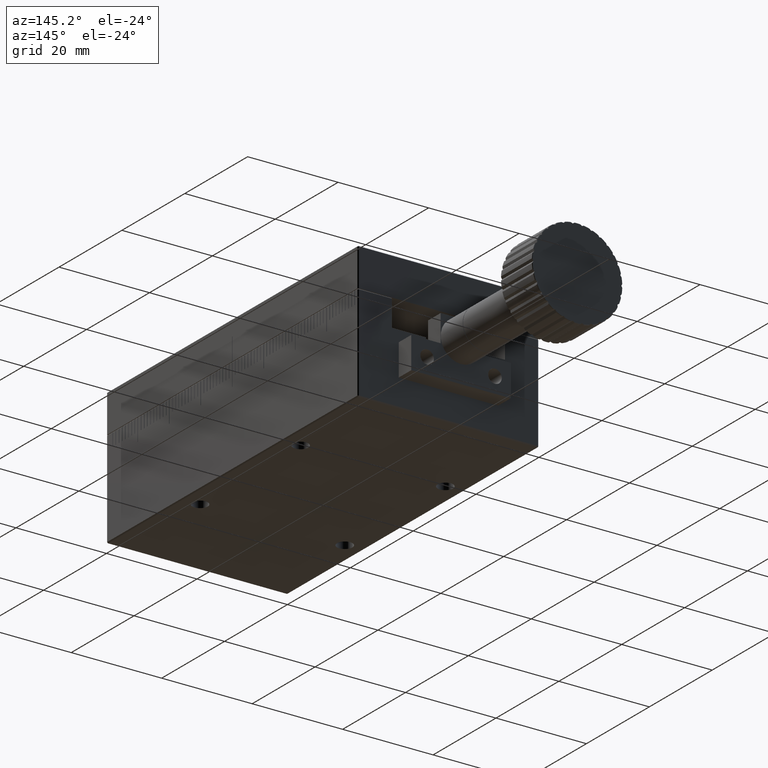
[diagram: clean part render]
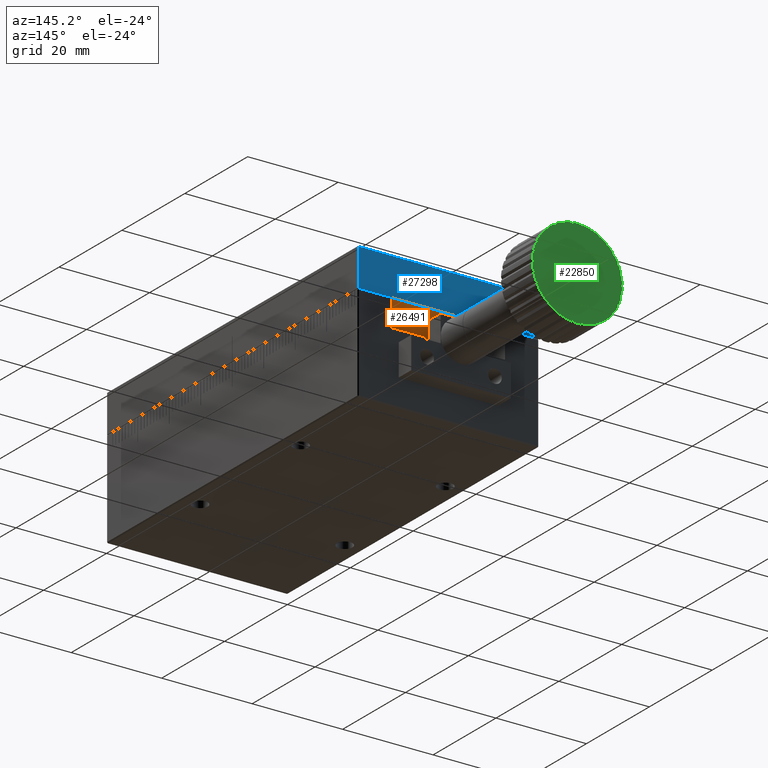
[diagram: same view with three faces highlighted in distinct colors, each labeled with its STEP entity id]
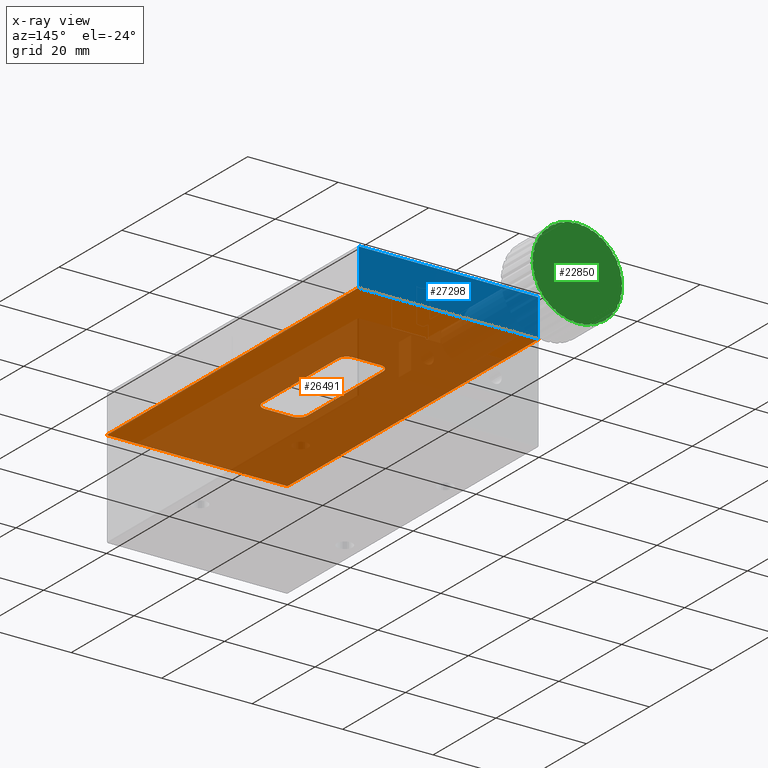
[diagram: x-ray of the same camera — body ghosted, the three highlighted faces saturated]
A machine part, auxiliary view with three faces highlighted in distinct colors.
The next image is the same camera in x-ray (body ghosted, the three faces saturated) — at least one of them is partly hidden behind the body in this view.
Their STEP definitions:

[orange] entity #26491 — the highlighted planar face has unit normal (0, 0, 1).
#36 = FACE_OUTER_BOUND ( 'NONE', #4487, .T. ) ;
#96 = ORIENTED_EDGE ( 'NONE', *, *, #10617, .T. ) ;
#141 = VECTOR ( 'NONE', #22877, 1000.000000000000000 ) ;
#271 = CARTESIAN_POINT ( 'NONE',  ( 3.000000000000000000, -14.00000000000000000, 21.50000000000000000 ) ) ;
#702 = EDGE_CURVE ( 'NONE', #13693, #13730, #10992, .T. ) ;
#756 = CARTESIAN_POINT ( 'NONE',  ( 20.00000000000000000, -39.79999999999999700, 21.50000000000000400 ) ) ;
#764 = DIRECTION ( 'NONE',  ( 0.0000000000000000000, -1.000000000000000000, 0.0000000000000000000 ) ) ;
#820 = EDGE_CURVE ( 'NONE', #16995, #15368, #5698, .T. ) ;
#977 = EDGE_CURVE ( 'NONE', #2040, #17492, #23568, .T. ) ;
#993 = DIRECTION ( 'NONE',  ( -0.0000000000000000000, -1.000000000000000000, -0.0000000000000000000 ) ) ;
#1009 = VERTEX_POINT ( 'NONE', #13915 ) ;
#1062 = ORIENTED_EDGE ( 'NONE', *, *, #8062, .F. ) ;
#1584 = CARTESIAN_POINT ( 'NONE',  ( 19.89999999999999900, 0.0000000000000000000, 21.50000000000000000 ) ) ;
#1852 = DIRECTION ( 'NONE',  ( 0.0000000000000000000, 0.0000000000000000000, 1.000000000000000000 ) ) ;
#1916 = EDGE_CURVE ( 'NONE', #7791, #11721, #22510, .T. ) ;
#2040 = VERTEX_POINT ( 'NONE', #11054 ) ;
#2355 = VECTOR ( 'NONE', #7425, 1000.000000000000000 ) ;
#2562 = CARTESIAN_POINT ( 'NONE',  ( 20.00000000000000400, -39.79999999999999000, 21.50000000000000400 ) ) ;
#2801 = VERTEX_POINT ( 'NONE', #6782 ) ;
#2980 = VERTEX_POINT ( 'NONE', #5034 ) ;
#3208 = ORIENTED_EDGE ( 'NONE', *, *, #19644, .T. ) ;
#3290 = CARTESIAN_POINT ( 'NONE',  ( -20.00000000000000000, 0.0000000000000000000, 21.50000000000000000 ) ) ;
#3299 = CARTESIAN_POINT ( 'NONE',  ( -19.80000000000000100, 40.00000000000000000, 21.50000000000000400 ) ) ;
#3364 = DIRECTION ( 'NONE',  ( 0.0000000000000000000, -1.000000000000000000, -1.734723475976807100E-015 ) ) ;
#3382 = CARTESIAN_POINT ( 'NONE',  ( -3.000000000000000000, 12.00000000000000000, 21.50000000000000000 ) ) ;
#3400 = DIRECTION ( 'NONE',  ( -0.0000000000000000000, 8.673617379884035500E-016, -1.000000000000000000 ) ) ;
#3476 = ORIENTED_EDGE ( 'NONE', *, *, #26155, .F. ) ;
#3664 = CARTESIAN_POINT ( 'NONE',  ( 0.0000000000000000000, -0.05000000000000837100, 21.50000000000000000 ) ) ;
#3793 = LINE ( 'NONE', #26254, #14379 ) ;
#3830 = DIRECTION ( 'NONE',  ( 0.0000000000000000000, -1.000000000000000000, -1.734723475976807100E-015 ) ) ;
#3860 = DIRECTION ( 'NONE',  ( -0.0000000000000000000, 8.673617379884035500E-016, -1.000000000000000000 ) ) ;
#3884 = PLANE ( 'NONE',  #18628 ) ;
#4487 = EDGE_LOOP ( 'NONE', ( #14777, #3476, #14827, #23928, #19769, #25127, #27139, #11777, #3208, #11360, #10810, #1062 ) ) ;
#4568 = LINE ( 'NONE', #20837, #22083 ) ;
#4889 = EDGE_CURVE ( 'NONE', #13693, #12331, #11551, .T. ) ;
#5034 = CARTESIAN_POINT ( 'NONE',  ( 3.000000000000000000, 14.00000000000000000, 21.50000000000000000 ) ) ;
#5073 = DIRECTION ( 'NONE',  ( -0.7071067811865352500, 0.7071067811865597900, 0.0000000000000000000 ) ) ;
#5526 = AXIS2_PLACEMENT_3D ( 'NONE', #3382, #3860, #3830 ) ;
#5622 = VECTOR ( 'NONE', #6779, 1000.000000000000000 ) ;
#5698 = LINE ( 'NONE', #8071, #11985 ) ;
#5755 = AXIS2_PLACEMENT_3D ( 'NONE', #10436, #25212, #12569 ) ;
#6402 = EDGE_CURVE ( 'NONE', #16249, #15368, #20050, .T. ) ;
#6537 = DIRECTION ( 'NONE',  ( 1.000000000000000000, -0.0000000000000000000, -0.0000000000000000000 ) ) ;
#6779 = DIRECTION ( 'NONE',  ( -1.000000000000000000, 0.0000000000000000000, 0.0000000000000000000 ) ) ;
#6782 = CARTESIAN_POINT ( 'NONE',  ( -20.00000000000000400, 39.79999999999999000, 21.50000000000000400 ) ) ;
#7229 = CARTESIAN_POINT ( 'NONE',  ( 0.0000000000000000000, 14.00000000000000000, 21.50000000000000000 ) ) ;
#7241 = LINE ( 'NONE', #24194, #7901 ) ;
#7425 = DIRECTION ( 'NONE',  ( -0.7071067811865352500, -0.7071067811865597900, -0.0000000000000000000 ) ) ;
#7670 = VECTOR ( 'NONE', #10938, 1000.000000000000000 ) ;
#7791 = VERTEX_POINT ( 'NONE', #23106 ) ;
#7901 = VECTOR ( 'NONE', #11513, 1000.000000000000000 ) ;
#7921 = VECTOR ( 'NONE', #18089, 1000.000000000000000 ) ;
#7949 = CARTESIAN_POINT ( 'NONE',  ( 0.0000000000000000000, -14.00000000000000000, 21.50000000000000000 ) ) ;
#8062 = EDGE_CURVE ( 'NONE', #1009, #2801, #18571, .T. ) ;
#8071 = CARTESIAN_POINT ( 'NONE',  ( 20.00000000000000000, 0.0000000000000000000, 21.50000000000000000 ) ) ;
#8107 = DIRECTION ( 'NONE',  ( -0.0000000000000000000, -1.000000000000000000, -0.0000000000000000000 ) ) ;
#8178 = DIRECTION ( 'NONE',  ( -1.000000000000000000, -0.0000000000000000000, -0.0000000000000000000 ) ) ;
#8289 = LINE ( 'NONE', #7229, #13936 ) ;
#8980 = CARTESIAN_POINT ( 'NONE',  ( -3.000000000000000000, -14.00000000000000000, 21.50000000000000400 ) ) ;
#9158 = ORIENTED_EDGE ( 'NONE', *, *, #9749, .T. ) ;
#9225 = CARTESIAN_POINT ( 'NONE',  ( -5.000000000000000000, 12.00000000000000000, 21.50000000000000000 ) ) ;
#9456 = ORIENTED_EDGE ( 'NONE', *, *, #4889, .F. ) ;
#9490 = EDGE_CURVE ( 'NONE', #7791, #15820, #3793, .T. ) ;
#9749 = EDGE_CURVE ( 'NONE', #21462, #17492, #16998, .T. ) ;
#10436 = CARTESIAN_POINT ( 'NONE',  ( 3.000000000000000000, 12.00000000000000000, 21.50000000000000000 ) ) ;
#10617 = EDGE_CURVE ( 'NONE', #2980, #12331, #8289, .T. ) ;
#10810 = ORIENTED_EDGE ( 'NONE', *, *, #18280, .F. ) ;
#10938 = DIRECTION ( 'NONE',  ( 0.0000000000000000000, -1.000000000000000000, 0.0000000000000000000 ) ) ;
#10992 = LINE ( 'NONE', #17520, #7670 ) ;
#11054 = CARTESIAN_POINT ( 'NONE',  ( 5.000000000000000000, -12.00000000000000000, 21.50000000000000000 ) ) ;
#11125 = EDGE_LOOP ( 'NONE', ( #11585, #96, #9456, #12778, #12891, #9158, #16250, #23527 ) ) ;
#11162 = CARTESIAN_POINT ( 'NONE',  ( -19.79999999999999700, -40.00000000000000700, 21.50000000000000000 ) ) ;
#11360 = ORIENTED_EDGE ( 'NONE', *, *, #20974, .F. ) ;
#11451 = CARTESIAN_POINT ( 'NONE',  ( -20.00000000000000400, -39.79999999999999000, 21.50000000000000000 ) ) ;
#11513 = DIRECTION ( 'NONE',  ( 1.000000000000000000, -0.0000000000000000000, -0.0000000000000000000 ) ) ;
#11551 = CIRCLE ( 'NONE', #5526, 2.000000000000000000 ) ;
#11585 = ORIENTED_EDGE ( 'NONE', *, *, #13431, .F. ) ;
#11721 = VERTEX_POINT ( 'NONE', #27280 ) ;
#11777 = ORIENTED_EDGE ( 'NONE', *, *, #14468, .F. ) ;
#11985 = VECTOR ( 'NONE', #8107, 1000.000000000000000 ) ;
#12051 = DIRECTION ( 'NONE',  ( -1.000000000000000000, -0.0000000000000000000, -0.0000000000000000000 ) ) ;
#12331 = VERTEX_POINT ( 'NONE', #16949 ) ;
#12569 = DIRECTION ( 'NONE',  ( 0.0000000000000000000, -1.000000000000000000, 0.0000000000000000000 ) ) ;
#12778 = ORIENTED_EDGE ( 'NONE', *, *, #702, .T. ) ;
#12891 = ORIENTED_EDGE ( 'NONE', *, *, #13640, .F. ) ;
#13060 = VERTEX_POINT ( 'NONE', #21272 ) ;
#13401 = DIRECTION ( 'NONE',  ( -0.0000000000000000000, 8.673617379884035500E-016, -1.000000000000000000 ) ) ;
#13431 = EDGE_CURVE ( 'NONE', #2980, #13060, #16941, .T. ) ;
#13640 = EDGE_CURVE ( 'NONE', #21462, #13730, #13934, .T. ) ;
#13693 = VERTEX_POINT ( 'NONE', #9225 ) ;
#13730 = VERTEX_POINT ( 'NONE', #15800 ) ;
#13857 = EDGE_CURVE ( 'NONE', #11721, #16249, #19566, .T. ) ;
#13915 = CARTESIAN_POINT ( 'NONE',  ( -19.79999999999999700, 40.00000000000000700, 21.50000000000000400 ) ) ;
#13934 = CIRCLE ( 'NONE', #15154, 2.000000000000000000 ) ;
#13936 = VECTOR ( 'NONE', #12051, 1000.000000000000000 ) ;
#13941 = DIRECTION ( 'NONE',  ( -0.0000000000000000000, 1.000000000000000000, -0.0000000000000000000 ) ) ;
#14233 = DIRECTION ( 'NONE',  ( -0.0000000000000000000, 1.000000000000000000, -0.0000000000000000000 ) ) ;
#14379 = VECTOR ( 'NONE', #993, 1000.000000000000000 ) ;
#14468 = EDGE_CURVE ( 'NONE', #21666, #15820, #15840, .T. ) ;
#14777 = ORIENTED_EDGE ( 'NONE', *, *, #26798, .T. ) ;
#14827 = ORIENTED_EDGE ( 'NONE', *, *, #820, .T. ) ;
#15008 = CARTESIAN_POINT ( 'NONE',  ( 3.000000000000000000, -12.00000000000000000, 21.50000000000000000 ) ) ;
#15154 = AXIS2_PLACEMENT_3D ( 'NONE', #26036, #13401, #764 ) ;
#15368 = VERTEX_POINT ( 'NONE', #25334 ) ;
#15465 = CARTESIAN_POINT ( 'NONE',  ( 19.79999999999999700, 40.00000000000000700, 21.50000000000000400 ) ) ;
#15771 = AXIS2_PLACEMENT_3D ( 'NONE', #15008, #3400, #3364 ) ;
#15800 = CARTESIAN_POINT ( 'NONE',  ( -5.000000000000000000, -12.00000000000000000, 21.50000000000000400 ) ) ;
#15820 = VERTEX_POINT ( 'NONE', #2562 ) ;
#15837 = CARTESIAN_POINT ( 'NONE',  ( 19.79999999999999700, -40.00000000000000700, 21.50000000000000400 ) ) ;
#15840 = LINE ( 'NONE', #756, #20166 ) ;
#16208 = FACE_BOUND ( 'NONE', #11125, .T. ) ;
#16249 = VERTEX_POINT ( 'NONE', #20714 ) ;
#16250 = ORIENTED_EDGE ( 'NONE', *, *, #977, .F. ) ;
#16619 = DIRECTION ( 'NONE',  ( -1.000000000000000000, 0.0000000000000000000, 0.0000000000000000000 ) ) ;
#16727 = EDGE_CURVE ( 'NONE', #2040, #13060, #25582, .T. ) ;
#16941 = CIRCLE ( 'NONE', #5755, 2.000000000000000000 ) ;
#16949 = CARTESIAN_POINT ( 'NONE',  ( -2.999999999615309900, 13.99999999999999800, 21.50000000000000400 ) ) ;
#16995 = VERTEX_POINT ( 'NONE', #19716 ) ;
#16998 = LINE ( 'NONE', #7949, #141 ) ;
#17050 = VERTEX_POINT ( 'NONE', #11451 ) ;
#17492 = VERTEX_POINT ( 'NONE', #271 ) ;
#17520 = CARTESIAN_POINT ( 'NONE',  ( -5.000000000000000000, 0.0000000000000000000, 21.50000000000000000 ) ) ;
#17665 = DIRECTION ( 'NONE',  ( 0.7071067811865352500, 0.7071067811865597900, 0.0000000000000000000 ) ) ;
#17774 = CARTESIAN_POINT ( 'NONE',  ( 20.00000000000000000, 39.79999999999999700, 21.50000000000000400 ) ) ;
#17850 = CARTESIAN_POINT ( 'NONE',  ( -19.80000000000000100, -40.00000000000000000, 21.50000000000000000 ) ) ;
#18089 = DIRECTION ( 'NONE',  ( -0.0000000000000000000, -1.000000000000000000, -0.0000000000000000000 ) ) ;
#18280 = EDGE_CURVE ( 'NONE', #2801, #17050, #24164, .T. ) ;
#18571 = LINE ( 'NONE', #3299, #2355 ) ;
#18628 = AXIS2_PLACEMENT_3D ( 'NONE', #27107, #1852, #16619 ) ;
#19401 = CARTESIAN_POINT ( 'NONE',  ( 0.0000000000000000000, 0.04999999999999102400, 21.50000000000000000 ) ) ;
#19566 = LINE ( 'NONE', #1584, #25143 ) ;
#19644 = EDGE_CURVE ( 'NONE', #21666, #20883, #4568, .T. ) ;
#19716 = CARTESIAN_POINT ( 'NONE',  ( 20.00000000000000400, 39.79999999999999000, 21.50000000000000400 ) ) ;
#19769 = ORIENTED_EDGE ( 'NONE', *, *, #13857, .F. ) ;
#19912 = VERTEX_POINT ( 'NONE', #15465 ) ;
#20011 = VECTOR ( 'NONE', #13941, 1000.000000000000000 ) ;
#20050 = LINE ( 'NONE', #19401, #26272 ) ;
#20166 = VECTOR ( 'NONE', #17665, 1000.000000000000000 ) ;
#20714 = CARTESIAN_POINT ( 'NONE',  ( 19.90000000000000200, 0.04999999999999776200, 21.50000000000000400 ) ) ;
#20837 = CARTESIAN_POINT ( 'NONE',  ( 0.0000000000000000000, -40.00000000000000000, 21.50000000000000000 ) ) ;
#20883 = VERTEX_POINT ( 'NONE', #11162 ) ;
#20974 = EDGE_CURVE ( 'NONE', #17050, #20883, #27352, .T. ) ;
#21272 = CARTESIAN_POINT ( 'NONE',  ( 5.000000000000000000, 12.00000000041020700, 21.50000000000000000 ) ) ;
#21462 = VERTEX_POINT ( 'NONE', #8980 ) ;
#21666 = VERTEX_POINT ( 'NONE', #15837 ) ;
#21857 = LINE ( 'NONE', #17774, #22551 ) ;
#22083 = VECTOR ( 'NONE', #8178, 1000.000000000000000 ) ;
#22463 = VECTOR ( 'NONE', #24215, 1000.000000000000000 ) ;
#22510 = LINE ( 'NONE', #3664, #5622 ) ;
#22551 = VECTOR ( 'NONE', #5073, 1000.000000000000000 ) ;
#22877 = DIRECTION ( 'NONE',  ( 1.000000000000000000, -0.0000000000000000000, -0.0000000000000000000 ) ) ;
#23106 = CARTESIAN_POINT ( 'NONE',  ( 20.00000000000000000, -0.05000000590000082400, 21.50000000000000000 ) ) ;
#23527 = ORIENTED_EDGE ( 'NONE', *, *, #16727, .T. ) ;
#23568 = CIRCLE ( 'NONE', #15771, 2.000000000000000000 ) ;
#23928 = ORIENTED_EDGE ( 'NONE', *, *, #6402, .F. ) ;
#24164 = LINE ( 'NONE', #3290, #7921 ) ;
#24194 = CARTESIAN_POINT ( 'NONE',  ( 0.0000000000000000000, 40.00000000000000000, 21.50000000000000000 ) ) ;
#24215 = DIRECTION ( 'NONE',  ( 0.7071067811865352500, -0.7071067811865597900, -0.0000000000000000000 ) ) ;
#25127 = ORIENTED_EDGE ( 'NONE', *, *, #1916, .F. ) ;
#25143 = VECTOR ( 'NONE', #14233, 1000.000000000000000 ) ;
#25212 = DIRECTION ( 'NONE',  ( -0.0000000000000000000, 8.673617379884035500E-016, -1.000000000000000000 ) ) ;
#25334 = CARTESIAN_POINT ( 'NONE',  ( 20.00000000000000000, 0.05000000589999511300, 21.50000000000000000 ) ) ;
#25582 = LINE ( 'NONE', #26559, #20011 ) ;
#26036 = CARTESIAN_POINT ( 'NONE',  ( -3.000000000000000000, -12.00000000000000000, 21.50000000000000400 ) ) ;
#26155 = EDGE_CURVE ( 'NONE', #16995, #19912, #21857, .T. ) ;
#26254 = CARTESIAN_POINT ( 'NONE',  ( 20.00000000000000000, 0.0000000000000000000, 21.50000000000000000 ) ) ;
#26272 = VECTOR ( 'NONE', #6537, 1000.000000000000000 ) ;
#26491 = ADVANCED_FACE ( 'NONE', ( #16208, #36 ), #3884, .F. ) ;
#26559 = CARTESIAN_POINT ( 'NONE',  ( 5.000000000000000000, 0.0000000000000000000, 21.50000000000000000 ) ) ;
#26798 = EDGE_CURVE ( 'NONE', #1009, #19912, #7241, .T. ) ;
#27107 = CARTESIAN_POINT ( 'NONE',  ( 20.00000000000000000, 40.00000000000000000, 21.50000000000000000 ) ) ;
#27139 = ORIENTED_EDGE ( 'NONE', *, *, #9490, .T. ) ;
#27280 = CARTESIAN_POINT ( 'NONE',  ( 19.90000000000000200, -0.05000000000000209800, 21.50000000000000400 ) ) ;
#27352 = LINE ( 'NONE', #17850, #22463 ) ;

[blue] entity #27298 — the highlighted planar face has unit normal (-0, -1, -0).
#105 = VERTEX_POINT ( 'NONE', #24321 ) ;
#272 = FACE_OUTER_BOUND ( 'NONE', #2668, .T. ) ;
#627 = DIRECTION ( 'NONE',  ( -0.0000000000000000000, -0.0000000000000000000, 1.000000000000000000 ) ) ;
#1009 = VERTEX_POINT ( 'NONE', #13915 ) ;
#1075 = DIRECTION ( 'NONE',  ( -0.0000000000000000000, -1.000000000000000000, -0.0000000000000000000 ) ) ;
#2668 = EDGE_LOOP ( 'NONE', ( #20030, #4190, #4242, #9080 ) ) ;
#4190 = ORIENTED_EDGE ( 'NONE', *, *, #6771, .T. ) ;
#4242 = ORIENTED_EDGE ( 'NONE', *, *, #21461, .F. ) ;
#4257 = CARTESIAN_POINT ( 'NONE',  ( -19.80000000001240000, 39.99999999998760100, 29.80000000000000100 ) ) ;
#6088 = EDGE_CURVE ( 'NONE', #23157, #1009, #12115, .T. ) ;
#6499 = VECTOR ( 'NONE', #8162, 1000.000000000000000 ) ;
#6771 = EDGE_CURVE ( 'NONE', #23157, #105, #16004, .T. ) ;
#7241 = LINE ( 'NONE', #24194, #7901 ) ;
#7323 = CARTESIAN_POINT ( 'NONE',  ( 19.80000000000000100, 40.00000000000000000, 29.80000000000000100 ) ) ;
#7901 = VECTOR ( 'NONE', #11513, 1000.000000000000000 ) ;
#8162 = DIRECTION ( 'NONE',  ( 0.0000000000000000000, 0.0000000000000000000, -1.000000000000000000 ) ) ;
#9037 = VECTOR ( 'NONE', #19390, 1000.000000000000000 ) ;
#9080 = ORIENTED_EDGE ( 'NONE', *, *, #26798, .F. ) ;
#10199 = CARTESIAN_POINT ( 'NONE',  ( -19.80000000000000100, 40.00000000000000000, 25.64999999999999900 ) ) ;
#11513 = DIRECTION ( 'NONE',  ( 1.000000000000000000, -0.0000000000000000000, -0.0000000000000000000 ) ) ;
#12115 = LINE ( 'NONE', #10199, #6499 ) ;
#13716 = PLANE ( 'NONE',  #14554 ) ;
#13915 = CARTESIAN_POINT ( 'NONE',  ( -19.79999999999999700, 40.00000000000000700, 21.50000000000000400 ) ) ;
#14554 = AXIS2_PLACEMENT_3D ( 'NONE', #7323, #1075, #15832 ) ;
#15465 = CARTESIAN_POINT ( 'NONE',  ( 19.79999999999999700, 40.00000000000000700, 21.50000000000000400 ) ) ;
#15832 = DIRECTION ( 'NONE',  ( -1.000000000000000000, 0.0000000000000000000, 0.0000000000000000000 ) ) ;
#16004 = LINE ( 'NONE', #18088, #9037 ) ;
#18088 = CARTESIAN_POINT ( 'NONE',  ( 0.0000000000000000000, 40.00000000000000000, 29.80000000000000100 ) ) ;
#19141 = VECTOR ( 'NONE', #627, 1000.000000000000000 ) ;
#19390 = DIRECTION ( 'NONE',  ( 1.000000000000000000, -0.0000000000000000000, -0.0000000000000000000 ) ) ;
#19912 = VERTEX_POINT ( 'NONE', #15465 ) ;
#20030 = ORIENTED_EDGE ( 'NONE', *, *, #6088, .F. ) ;
#21461 = EDGE_CURVE ( 'NONE', #19912, #105, #24721, .T. ) ;
#23157 = VERTEX_POINT ( 'NONE', #4257 ) ;
#24194 = CARTESIAN_POINT ( 'NONE',  ( 0.0000000000000000000, 40.00000000000000000, 21.50000000000000000 ) ) ;
#24321 = CARTESIAN_POINT ( 'NONE',  ( 19.80000000000620000, 39.99999999999380400, 29.80000000000000100 ) ) ;
#24721 = LINE ( 'NONE', #25888, #19141 ) ;
#25888 = CARTESIAN_POINT ( 'NONE',  ( 19.80000000000000100, 40.00000000000000000, 25.64999999999999900 ) ) ;
#26798 = EDGE_CURVE ( 'NONE', #1009, #19912, #7241, .T. ) ;
#27298 = ADVANCED_FACE ( 'NONE', ( #272 ), #13716, .F. ) ;

[green] entity #22850 — the highlighted planar face has unit normal (0, 1, 0).
#8 = CARTESIAN_POINT ( 'NONE',  ( 0.0000000000000000000, 81.00000000000000000, 14.50000000000000000 ) ) ;
#42 = AXIS2_PLACEMENT_3D ( 'NONE', #14975, #14694, #14516 ) ;
#47 = LINE ( 'NONE', #17372, #26757 ) ;
#53 = DIRECTION ( 'NONE',  ( 0.0000000000000000000, 1.000000000000000000, 0.0000000000000000000 ) ) ;
#63 = DIRECTION ( 'NONE',  ( 0.6691306060866310000, -0.0000000000000000000, -0.7431448257225087300 ) ) ;
#117 = EDGE_CURVE ( 'NONE', #18846, #26868, #21308, .T. ) ;
#121 = ORIENTED_EDGE ( 'NONE', *, *, #4145, .T. ) ;
#128 = DIRECTION ( 'NONE',  ( 0.5000000005668264700, -0.0000000000000000000, 0.8660254034571812600 ) ) ;
#143 = EDGE_CURVE ( 'NONE', #13740, #10730, #15693, .T. ) ;
#170 = DIRECTION ( 'NONE',  ( 0.0000000000000000000, 0.0000000000000000000, -1.000000000000000000 ) ) ;
#218 = DIRECTION ( 'NONE',  ( 0.0000000000000000000, 1.000000000000000000, 0.0000000000000000000 ) ) ;
#227 = EDGE_CURVE ( 'NONE', #26303, #8904, #12694, .T. ) ;
#232 = DIRECTION ( 'NONE',  ( 8.881784197001252300E-016, 0.0000000000000000000, -1.000000000000000000 ) ) ;
#268 = EDGE_CURVE ( 'NONE', #1679, #26303, #26225, .T. ) ;
#300 = DIRECTION ( 'NONE',  ( 0.9781476008482020700, -0.0000000000000000000, -0.2079116902795667400 ) ) ;
#319 = CARTESIAN_POINT ( 'NONE',  ( 6.412501585500000300, 81.00000000000000000, 21.98050321300000600 ) ) ;
#349 = VERTEX_POINT ( 'NONE', #9981 ) ;
#397 = CARTESIAN_POINT ( 'NONE',  ( 0.0000000000000000000, 81.00000000000000000, 14.50000000000000000 ) ) ;
#480 = ORIENTED_EDGE ( 'NONE', *, *, #11872, .T. ) ;
#494 = EDGE_CURVE ( 'NONE', #9789, #349, #2781, .T. ) ;
#521 = ORIENTED_EDGE ( 'NONE', *, *, #9522, .T. ) ;
#617 = EDGE_CURVE ( 'NONE', #3754, #24589, #17979, .T. ) ;
#618 = CARTESIAN_POINT ( 'NONE',  ( 0.0000000000000000000, 81.00000000000000000, 14.50000000000000000 ) ) ;
#631 = CIRCLE ( 'NONE', #18359, 9.899999999999996800 ) ;
#671 = ORIENTED_EDGE ( 'NONE', *, *, #1013, .T. ) ;
#676 = ORIENTED_EDGE ( 'NONE', *, *, #22379, .T. ) ;
#687 = CARTESIAN_POINT ( 'NONE',  ( -1.015109864000000000, 81.00000000000000000, 4.841874788000001000 ) ) ;
#688 = DIRECTION ( 'NONE',  ( 0.0000000000000000000, 1.000000000000000000, 0.0000000000000000000 ) ) ;
#722 = LINE ( 'NONE', #20761, #4992 ) ;
#749 = DIRECTION ( 'NONE',  ( 0.0000000000000000000, 0.0000000000000000000, -1.000000000000000000 ) ) ;
#750 = CIRCLE ( 'NONE', #16415, 9.899999999999996800 ) ;
#758 = CARTESIAN_POINT ( 'NONE',  ( 9.849898328499998400, 81.00000000000000000, 14.74001627900000200 ) ) ;
#773 = DIRECTION ( 'NONE',  ( -0.3090169871198449900, 0.0000000000000000000, 0.9510565186524793100 ) ) ;
#792 = CARTESIAN_POINT ( 'NONE',  ( -2.815516929999999400, 81.00000000000000000, 5.058020900499999000 ) ) ;
#795 = CARTESIAN_POINT ( 'NONE',  ( 6.384693327555373400, 81.00000000000000000, 22.06608823058982300 ) ) ;
#867 = EDGE_CURVE ( 'NONE', #22309, #14010, #9320, .T. ) ;
#895 = CARTESIAN_POINT ( 'NONE',  ( -8.871736718000002900, 81.00000000000000000, 10.55004832400000200 ) ) ;
#931 = CARTESIAN_POINT ( 'NONE',  ( 9.894893035339979500, 81.00000000000000000, 14.81794939720071700 ) ) ;
#937 = DIRECTION ( 'NONE',  ( 0.0000000000000000000, 1.000000000000000000, 0.0000000000000000000 ) ) ;
#964 = VECTOR ( 'NONE', #15211, 1000.000000000000100 ) ;
#995 = CARTESIAN_POINT ( 'NONE',  ( -3.000964422599378800, 81.00000000000000000, 23.73601879322371700 ) ) ;
#1002 = VECTOR ( 'NONE', #19798, 1000.000000000000000 ) ;
#1013 = EDGE_CURVE ( 'NONE', #26657, #11152, #19285, .T. ) ;
#1015 = VERTEX_POINT ( 'NONE', #23419 ) ;
#1024 = ORIENTED_EDGE ( 'NONE', *, *, #6137, .T. ) ;
#1041 = VECTOR ( 'NONE', #300, 999.9999999999998900 ) ;
#1042 = DIRECTION ( 'NONE',  ( -0.1045284637515155600, -0.0000000000000000000, -0.9945218953174174100 ) ) ;
#1068 = LINE ( 'NONE', #17931, #12292 ) ;
#1109 = LINE ( 'NONE', #13413, #12323 ) ;
#1143 = CARTESIAN_POINT ( 'NONE',  ( 4.855662433000000900, 81.00000000000000000, 6.089745962000000300 ) ) ;
#1159 = CIRCLE ( 'NONE', #13966, 9.899999999999996800 ) ;
#1174 = VERTEX_POINT ( 'NONE', #23169 ) ;
#1237 = EDGE_CURVE ( 'NONE', #26958, #24475, #11280, .T. ) ;
#1265 = CARTESIAN_POINT ( 'NONE',  ( -5.222798772335064400, 81.00000000000000000, 22.91025403800000100 ) ) ;
#1288 = ORIENTED_EDGE ( 'NONE', *, *, #14673, .T. ) ;
#1310 = CARTESIAN_POINT ( 'NONE',  ( -9.612560485587472700, 80.99999999947598900, 16.86826538236274000 ) ) ;
#1430 = DIRECTION ( 'NONE',  ( 0.0000000000000000000, 1.000000000000000000, 0.0000000000000000000 ) ) ;
#1486 = EDGE_CURVE ( 'NONE', #16381, #25574, #9599, .T. ) ;
#1527 = VERTEX_POINT ( 'NONE', #14884 ) ;
#1542 = CARTESIAN_POINT ( 'NONE',  ( 8.900706460500002100, 81.00000000000000000, 18.72558036250000100 ) ) ;
#1543 = DIRECTION ( 'NONE',  ( 0.0000000000000000000, 1.000000000000000000, 0.0000000000000000000 ) ) ;
#1570 = EDGE_CURVE ( 'NONE', #13026, #1174, #47, .T. ) ;
#1595 = LINE ( 'NONE', #17620, #13485 ) ;
#1644 = LINE ( 'NONE', #21519, #6590 ) ;
#1679 = VERTEX_POINT ( 'NONE', #12793 ) ;
#1735 = VERTEX_POINT ( 'NONE', #10553 ) ;
#1742 = EDGE_CURVE ( 'NONE', #18744, #25658, #21506, .T. ) ;
#1749 = ORIENTED_EDGE ( 'NONE', *, *, #7381, .T. ) ;
#1777 = AXIS2_PLACEMENT_3D ( 'NONE', #23960, #26040, #15516 ) ;
#1782 = VECTOR ( 'NONE', #21077, 1000.000000000000100 ) ;
#1819 = VERTEX_POINT ( 'NONE', #13744 ) ;
#1843 = ORIENTED_EDGE ( 'NONE', *, *, #18346, .T. ) ;
#1863 = LINE ( 'NONE', #23519, #12422 ) ;
#1868 = VECTOR ( 'NONE', #24380, 1000.000000000000000 ) ;
#1881 = CARTESIAN_POINT ( 'NONE',  ( -1.268296180499999900, 81.00000000000000000, 4.729148977500000400 ) ) ;
#1940 = LINE ( 'NONE', #21021, #12489 ) ;
#1965 = VERTEX_POINT ( 'NONE', #3761 ) ;
#2045 = EDGE_CURVE ( 'NONE', #2111, #9951, #22864, .T. ) ;
#2050 = VERTEX_POINT ( 'NONE', #18023 ) ;
#2071 = LINE ( 'NONE', #14836, #23901 ) ;
#2082 = VERTEX_POINT ( 'NONE', #7221 ) ;
#2111 = VERTEX_POINT ( 'NONE', #15224 ) ;
#2127 = DIRECTION ( 'NONE',  ( -2.486899575160351000E-014, 0.0000000000000000000, -1.000000000000000000 ) ) ;
#2175 = CARTESIAN_POINT ( 'NONE',  ( 0.0000000000000000000, 81.00000000000000000, 14.50000000000000000 ) ) ;
#2222 = DIRECTION ( 'NONE',  ( 0.0000000000000000000, 0.0000000000000000000, -1.000000000000000000 ) ) ;
#2285 = DIRECTION ( 'NONE',  ( 0.0000000000000000000, 1.000000000000000000, 0.0000000000000000000 ) ) ;
#2315 = CARTESIAN_POINT ( 'NONE',  ( 0.0000000000000000000, 81.00000000000000000, 14.50000000000000000 ) ) ;
#2419 = AXIS2_PLACEMENT_3D ( 'NONE', #397, #15167, #2531 ) ;
#2464 = CARTESIAN_POINT ( 'NONE',  ( -8.109813170000000700, 81.00000000000000000, 8.904552274499996800 ) ) ;
#2510 = VECTOR ( 'NONE', #25538, 1000.000000000000200 ) ;
#2521 = DIRECTION ( 'NONE',  ( 0.0000000000000000000, 1.000000000000000000, 0.0000000000000000000 ) ) ;
#2526 = VECTOR ( 'NONE', #3652, 1000.000000000000100 ) ;
#2531 = DIRECTION ( 'NONE',  ( 7.993605777301127100E-015, 0.0000000000000000000, -1.000000000000000000 ) ) ;
#2602 = ORIENTED_EDGE ( 'NONE', *, *, #8780, .T. ) ;
#2612 = EDGE_CURVE ( 'NONE', #22774, #1965, #4842, .T. ) ;
#2730 = CARTESIAN_POINT ( 'NONE',  ( -9.894893035234650500, 81.00000000011112900, 14.81794939701828000 ) ) ;
#2735 = ORIENTED_EDGE ( 'NONE', *, *, #10351, .T. ) ;
#2742 = DIRECTION ( 'NONE',  ( 0.0000000000000000000, 0.0000000000000000000, -1.000000000000000000 ) ) ;
#2743 = DIRECTION ( 'NONE',  ( -0.9781476008482026300, -0.0000000000000000000, -0.2079116902795637200 ) ) ;
#2746 = EDGE_CURVE ( 'NONE', #10355, #22309, #10767, .T. ) ;
#2781 = LINE ( 'NONE', #792, #12667 ) ;
#2899 = CARTESIAN_POINT ( 'NONE',  ( 7.818250656360300300, 81.00000000000000000, 20.57329866500254700 ) ) ;
#2935 = ORIENTED_EDGE ( 'NONE', *, *, #16933, .T. ) ;
#2961 = LINE ( 'NONE', #4414, #10520 ) ;
#3011 = VERTEX_POINT ( 'NONE', #16613 ) ;
#3021 = DIRECTION ( 'NONE',  ( -0.6691306060866301100, -0.0000000000000000000, 0.7431448257225093900 ) ) ;
#3024 = EDGE_CURVE ( 'NONE', #25658, #3392, #14407, .T. ) ;
#3044 = ORIENTED_EDGE ( 'NONE', *, *, #13552, .T. ) ;
#3057 = EDGE_CURVE ( 'NONE', #20603, #12183, #8085, .T. ) ;
#3077 = DIRECTION ( 'NONE',  ( 2.664535259100375700E-015, 0.0000000000000000000, -1.000000000000000000 ) ) ;
#3082 = VERTEX_POINT ( 'NONE', #11848 ) ;
#3158 = ORIENTED_EDGE ( 'NONE', *, *, #25594, .T. ) ;
#3175 = LINE ( 'NONE', #23448, #2510 ) ;
#3177 = CARTESIAN_POINT ( 'NONE',  ( 0.0000000000000000000, 81.00000000000000000, 14.50000000000000000 ) ) ;
#3193 = VERTEX_POINT ( 'NONE', #13393 ) ;
#3195 = CARTESIAN_POINT ( 'NONE',  ( 3.272055022500000000, 81.00000000000000000, 23.79364088100000500 ) ) ;
#3275 = CARTESIAN_POINT ( 'NONE',  ( 10.01363175200000000, 81.00000000000000000, 24.51880000000000200 ) ) ;
#3307 = DIRECTION ( 'NONE',  ( -0.9135454580895991900, -0.0000000000000000000, -0.4067366420718255800 ) ) ;
#3314 = CARTESIAN_POINT ( 'NONE',  ( 4.717088969499999800, 81.00000000000000000, 23.15027031700000000 ) ) ;
#3377 = CIRCLE ( 'NONE', #17021, 9.899999999999996800 ) ;
#3392 = VERTEX_POINT ( 'NONE', #895 ) ;
#3397 = LINE ( 'NONE', #21035, #8973 ) ;
#3452 = EDGE_CURVE ( 'NONE', #27272, #18172, #9394, .T. ) ;
#3458 = FACE_OUTER_BOUND ( 'NONE', #3572, .T. ) ;
#3572 = EDGE_LOOP ( 'NONE', ( #21534, #8984, #1749, #13501, #3720, #25610, #18517, #3775, #3905, #23405, #16112, #22062, #23047, #12455, #25029, #5648, #6966, #15250, #4037, #6660, #14957, #13539, #8354, #16823, #671, #2735, #26423, #20554, #6617, #3858, #2935, #21467, #10426, #19054, #22348, #18691, #23986, #676, #4384, #19269, #17475, #21688, #8138, #121, #24100, #1843, #480, #14224, #3044, #20596, #18118, #7052, #1288, #14279, #24536, #16793, #8830, #24300, #20773, #17533, #3609, #21684, #5334, #12998, #1024, #6451, #5440, #15649, #9457, #24460, #15080, #16510, #12063, #3158, #19449, #4159, #11773, #25302, #8020, #22513, #22914, #6395, #8385, #4892, #7484, #22932, #521, #2602, #14505, #16120, #12974 ) ) ;
#3609 = ORIENTED_EDGE ( 'NONE', *, *, #4349, .T. ) ;
#3652 = DIRECTION ( 'NONE',  ( -0.1045284639390602100, -0.0000000000000000000, -0.9945218952977055200 ) ) ;
#3682 = LINE ( 'NONE', #11547, #19908 ) ;
#3707 = AXIS2_PLACEMENT_3D ( 'NONE', #618, #15365, #2742 ) ;
#3714 = VECTOR ( 'NONE', #2743, 1000.000000000000200 ) ;
#3720 = ORIENTED_EDGE ( 'NONE', *, *, #27071, .T. ) ;
#3735 = CARTESIAN_POINT ( 'NONE',  ( 9.612560485511460600, 80.99999999984395100, 12.13173461886685100 ) ) ;
#3754 = VERTEX_POINT ( 'NONE', #17395 ) ;
#3761 = CARTESIAN_POINT ( 'NONE',  ( -1.350505600759470000, 80.99999999953600100, 4.692546985506155900 ) ) ;
#3775 = ORIENTED_EDGE ( 'NONE', *, *, #8688, .T. ) ;
#3822 = EDGE_CURVE ( 'NONE', #12183, #21615, #15307, .T. ) ;
#3858 = ORIENTED_EDGE ( 'NONE', *, *, #20825, .T. ) ;
#3886 = EDGE_CURVE ( 'NONE', #19689, #14097, #26191, .T. ) ;
#3903 = DIRECTION ( 'NONE',  ( 0.0000000000000000000, 1.000000000000000000, 0.0000000000000000000 ) ) ;
#3905 = ORIENTED_EDGE ( 'NONE', *, *, #26259, .T. ) ;
#3927 = LINE ( 'NONE', #10136, #24432 ) ;
#3935 = DIRECTION ( 'NONE',  ( -0.3090169946488867700, -0.0000000000000000000, -0.9510565162061452900 ) ) ;
#4014 = VERTEX_POINT ( 'NONE', #10523 ) ;
#4037 = ORIENTED_EDGE ( 'NONE', *, *, #13048, .T. ) ;
#4050 = CARTESIAN_POINT ( 'NONE',  ( 5.132809359500000400, 81.00000000000000000, 6.089745962000000300 ) ) ;
#4066 = CIRCLE ( 'NONE', #3707, 9.899999999999998600 ) ;
#4098 = LINE ( 'NONE', #22322, #15332 ) ;
#4108 = VERTEX_POINT ( 'NONE', #931 ) ;
#4145 = EDGE_CURVE ( 'NONE', #4108, #10312, #26161, .T. ) ;
#4159 = ORIENTED_EDGE ( 'NONE', *, *, #9652, .T. ) ;
#4219 = EDGE_CURVE ( 'NONE', #1819, #6536, #6675, .T. ) ;
#4245 = DIRECTION ( 'NONE',  ( 0.0000000000000000000, 1.000000000000000000, 0.0000000000000000000 ) ) ;
#4259 = CARTESIAN_POINT ( 'NONE',  ( 0.0000000000000000000, 81.00000000000000000, 14.50000000000000000 ) ) ;
#4275 = CARTESIAN_POINT ( 'NONE',  ( 8.109813170000000700, 81.00000000000000000, 20.09544772549999400 ) ) ;
#4290 = DIRECTION ( 'NONE',  ( -2.398081733190338400E-014, 0.0000000000000000000, -1.000000000000000000 ) ) ;
#4349 = EDGE_CURVE ( 'NONE', #14010, #3754, #3377, .T. ) ;
#4365 = VERTEX_POINT ( 'NONE', #17978 ) ;
#4384 = ORIENTED_EDGE ( 'NONE', *, *, #14510, .T. ) ;
#4393 = VECTOR ( 'NONE', #18842, 1000.000000000000200 ) ;
#4414 = CARTESIAN_POINT ( 'NONE',  ( -9.168756266540901500, 81.00000000000000000, 18.23415435696160000 ) ) ;
#4423 = EDGE_CURVE ( 'NONE', #18809, #19451, #6605, .T. ) ;
#4716 = CARTESIAN_POINT ( 'NONE',  ( 0.0000000000000000000, 81.00000000000000000, 14.50000000000000000 ) ) ;
#4767 = VECTOR ( 'NONE', #25134, 1000.000000000000000 ) ;
#4842 = LINE ( 'NONE', #1881, #9118 ) ;
#4892 = ORIENTED_EDGE ( 'NONE', *, *, #3024, .T. ) ;
#4969 = EDGE_CURVE ( 'NONE', #10312, #3011, #5595, .T. ) ;
#4992 = VECTOR ( 'NONE', #16600, 1000.000000000000100 ) ;
#5047 = CARTESIAN_POINT ( 'NONE',  ( -3.272055022500000000, 81.00000000000000000, 5.206359119000000000 ) ) ;
#5173 = DIRECTION ( 'NONE',  ( 0.0000000000000000000, 1.000000000000000000, 0.0000000000000000000 ) ) ;
#5259 = CARTESIAN_POINT ( 'NONE',  ( 9.095953292000000800, 81.00000000000000000, 18.28704879950000300 ) ) ;
#5267 = DIRECTION ( 'NONE',  ( 0.1045284767516377600, 0.0000000000000000000, 0.9945218939510494000 ) ) ;
#5279 = DIRECTION ( 'NONE',  ( 8.881784197001252300E-015, 0.0000000000000000000, -1.000000000000000000 ) ) ;
#5295 = CARTESIAN_POINT ( 'NONE',  ( 0.0000000000000000000, 81.00000000000000000, 14.50000000000000000 ) ) ;
#5322 = CARTESIAN_POINT ( 'NONE',  ( -6.498144696000000700, 81.00000000000000000, 7.283079178000000400 ) ) ;
#5334 = ORIENTED_EDGE ( 'NONE', *, *, #21724, .T. ) ;
#5382 = DIRECTION ( 'NONE',  ( 0.0000000000000000000, 0.0000000000000000000, -1.000000000000000000 ) ) ;
#5400 = EDGE_CURVE ( 'NONE', #20007, #23252, #17818, .T. ) ;
#5440 = ORIENTED_EDGE ( 'NONE', *, *, #13025, .T. ) ;
#5519 = LINE ( 'NONE', #12065, #11123 ) ;
#5595 = LINE ( 'NONE', #9202, #10527 ) ;
#5597 = DIRECTION ( 'NONE',  ( -1.000000000000000000, -0.0000000000000000000, -0.0000000000000000000 ) ) ;
#5648 = ORIENTED_EDGE ( 'NONE', *, *, #3057, .T. ) ;
#5729 = CARTESIAN_POINT ( 'NONE',  ( -9.684556608000001200, 81.00000000000000000, 12.68686233150000000 ) ) ;
#5756 = CARTESIAN_POINT ( 'NONE',  ( -5.132809359500000400, 81.00000000000000000, 6.089745962000000300 ) ) ;
#5783 = CARTESIAN_POINT ( 'NONE',  ( -6.384693327555371700, 81.00000000000000000, 6.933911769410176600 ) ) ;
#5818 = EDGE_CURVE ( 'NONE', #1735, #20603, #25027, .T. ) ;
#5882 = EDGE_CURVE ( 'NONE', #9227, #20573, #5519, .T. ) ;
#5884 = DIRECTION ( 'NONE',  ( 0.0000000000000000000, 1.000000000000000000, 0.0000000000000000000 ) ) ;
#6002 = CIRCLE ( 'NONE', #2419, 9.899999999999996800 ) ;
#6137 = EDGE_CURVE ( 'NONE', #23280, #2050, #24362, .T. ) ;
#6245 = CARTESIAN_POINT ( 'NONE',  ( 8.910112915601487800, 81.00000000035426200, 10.18492319602338000 ) ) ;
#6301 = EDGE_CURVE ( 'NONE', #25196, #22227, #8426, .T. ) ;
#6306 = AXIS2_PLACEMENT_3D ( 'NONE', #13327, #688, #15444 ) ;
#6376 = DIRECTION ( 'NONE',  ( 0.0000000000000000000, 0.0000000000000000000, -1.000000000000000000 ) ) ;
#6395 = ORIENTED_EDGE ( 'NONE', *, *, #24124, .T. ) ;
#6451 = ORIENTED_EDGE ( 'NONE', *, *, #9286, .T. ) ;
#6456 = VECTOR ( 'NONE', #22672, 1000.000000000000100 ) ;
#6489 = CARTESIAN_POINT ( 'NONE',  ( 6.412501585500000300, 81.00000000000000000, 7.019496786999999600 ) ) ;
#6536 = VERTEX_POINT ( 'NONE', #13540 ) ;
#6581 = EDGE_CURVE ( 'NONE', #13720, #25196, #15691, .T. ) ;
#6590 = VECTOR ( 'NONE', #6738, 1000.000000000000000 ) ;
#6605 = LINE ( 'NONE', #3314, #1002 ) ;
#6617 = ORIENTED_EDGE ( 'NONE', *, *, #4423, .T. ) ;
#6625 = DIRECTION ( 'NONE',  ( 0.9781476008482020700, -0.0000000000000000000, 0.2079116902795667400 ) ) ;
#6660 = ORIENTED_EDGE ( 'NONE', *, *, #23312, .T. ) ;
#6675 = LINE ( 'NONE', #9000, #22221 ) ;
#6712 = VECTOR ( 'NONE', #21982, 1000.000000000000000 ) ;
#6731 = AXIS2_PLACEMENT_3D ( 'NONE', #26336, #20157, #18174 ) ;
#6738 = DIRECTION ( 'NONE',  ( 1.000000000000000000, -0.0000000000000000000, -0.0000000000000000000 ) ) ;
#6843 = DIRECTION ( 'NONE',  ( 0.0000000000000000000, 0.0000000000000000000, -1.000000000000000000 ) ) ;
#6889 = CARTESIAN_POINT ( 'NONE',  ( -6.769235297500000700, 81.00000000000000000, 21.65929873600000400 ) ) ;
#6910 = LINE ( 'NONE', #5259, #16832 ) ;
#6944 = CARTESIAN_POINT ( 'NONE',  ( -6.857258225761349900, 80.99999999998105700, 7.359411114928740000 ) ) ;
#6966 = ORIENTED_EDGE ( 'NONE', *, *, #3822, .T. ) ;
#7052 = ORIENTED_EDGE ( 'NONE', *, *, #3886, .T. ) ;
#7078 = VERTEX_POINT ( 'NONE', #16970 ) ;
#7210 = CARTESIAN_POINT ( 'NONE',  ( -6.384693327529066500, 80.99999999995509400, 22.06608823067078600 ) ) ;
#7216 = EDGE_CURVE ( 'NONE', #22693, #1819, #14977, .T. ) ;
#7221 = CARTESIAN_POINT ( 'NONE',  ( -1.015109865961036500, 81.00000000000000000, 24.15812521057522500 ) ) ;
#7314 = VECTOR ( 'NONE', #19378, 1000.000000000000200 ) ;
#7345 = DIRECTION ( 'NONE',  ( 0.0000000000000000000, 1.000000000000000000, 0.0000000000000000000 ) ) ;
#7357 = VECTOR ( 'NONE', #20444, 1000.000000000000200 ) ;
#7371 = DIRECTION ( 'NONE',  ( 0.8090169943657873300, -0.0000000000000000000, -0.5877852523050807200 ) ) ;
#7381 = EDGE_CURVE ( 'NONE', #6536, #18846, #1109, .T. ) ;
#7440 = CARTESIAN_POINT ( 'NONE',  ( -9.168756253342349900, 80.99999999940426700, 18.23415435923461600 ) ) ;
#7484 = ORIENTED_EDGE ( 'NONE', *, *, #8313, .T. ) ;
#7490 = VECTOR ( 'NONE', #21846, 999.9999999999998900 ) ;
#7509 = CARTESIAN_POINT ( 'NONE',  ( 3.272055022500000000, 81.00000000000000000, 5.206359119000000000 ) ) ;
#7617 = LINE ( 'NONE', #319, #18904 ) ;
#7619 = DIRECTION ( 'NONE',  ( -0.1045284227977386100, 0.0000000000000000000, 0.9945218996218319100 ) ) ;
#7621 = CARTESIAN_POINT ( 'NONE',  ( -6.498144695750333700, 81.00000000000000000, 21.71692082276839700 ) ) ;
#7692 = VECTOR ( 'NONE', #17666, 1000.000000000000000 ) ;
#7724 = VECTOR ( 'NONE', #20531, 1000.000000000000000 ) ;
#7771 = CARTESIAN_POINT ( 'NONE',  ( 0.0000000000000000000, 81.00000000000000000, 14.50000000000000000 ) ) ;
#7799 = LINE ( 'NONE', #20217, #18427 ) ;
#7927 = VERTEX_POINT ( 'NONE', #25990 ) ;
#7928 = CARTESIAN_POINT ( 'NONE',  ( -4.672094262718720100, 80.99999999978769000, 23.22820343509904400 ) ) ;
#8020 = ORIENTED_EDGE ( 'NONE', *, *, #17396, .T. ) ;
#8085 = CIRCLE ( 'NONE', #11658, 9.899999999999998600 ) ;
#8138 = ORIENTED_EDGE ( 'NONE', *, *, #12509, .T. ) ;
#8167 = VECTOR ( 'NONE', #11861, 1000.000000000000000 ) ;
#8169 = CARTESIAN_POINT ( 'NONE',  ( -0.7180903261564356400, 81.00000000013278600, 24.37392253771779600 ) ) ;
#8255 = DIRECTION ( 'NONE',  ( 0.6691306060866310000, -0.0000000000000000000, 0.7431448257225087300 ) ) ;
#8270 = DIRECTION ( 'NONE',  ( -0.9781476008482026300, -0.0000000000000000000, 0.2079116902795637200 ) ) ;
#8313 = EDGE_CURVE ( 'NONE', #3392, #20007, #26733, .T. ) ;
#8354 = ORIENTED_EDGE ( 'NONE', *, *, #17834, .T. ) ;
#8385 = ORIENTED_EDGE ( 'NONE', *, *, #1742, .T. ) ;
#8415 = CARTESIAN_POINT ( 'NONE',  ( 9.499109116064529300, 81.00000000000000000, 16.51909797403894200 ) ) ;
#8426 = LINE ( 'NONE', #22249, #24015 ) ;
#8440 = LINE ( 'NONE', #25856, #24671 ) ;
#8668 = AXIS2_PLACEMENT_3D ( 'NONE', #3275, #18072, #5382 ) ;
#8688 = EDGE_CURVE ( 'NONE', #11477, #15560, #9089, .T. ) ;
#8740 = VECTOR ( 'NONE', #20256, 1000.000000000000200 ) ;
#8780 = EDGE_CURVE ( 'NONE', #26505, #27272, #12735, .T. ) ;
#8806 = VECTOR ( 'NONE', #128, 1000.000000000000000 ) ;
#8830 = ORIENTED_EDGE ( 'NONE', *, *, #1237, .T. ) ;
#8874 = CARTESIAN_POINT ( 'NONE',  ( 0.0000000000000000000, 81.00000000000000000, 4.600000000000003200 ) ) ;
#8880 = AXIS2_PLACEMENT_3D ( 'NONE', #12864, #218, #14985 ) ;
#8882 = DIRECTION ( 'NONE',  ( 0.6691306060866336600, -0.0000000000000000000, 0.7431448257225064000 ) ) ;
#8904 = VERTEX_POINT ( 'NONE', #9208 ) ;
#8909 = DIRECTION ( 'NONE',  ( 0.3090169951790973600, -0.0000000000000000000, -0.9510565160338693100 ) ) ;
#8919 = EDGE_CURVE ( 'NONE', #20785, #17177, #18716, .T. ) ;
#8932 = VECTOR ( 'NONE', #18996, 1000.000000000000000 ) ;
#8973 = VECTOR ( 'NONE', #8270, 1000.000000000000200 ) ;
#8984 = ORIENTED_EDGE ( 'NONE', *, *, #4219, .T. ) ;
#9000 = CARTESIAN_POINT ( 'NONE',  ( -9.684556608000001200, 81.00000000000000000, 16.31313766850000500 ) ) ;
#9089 = LINE ( 'NONE', #11834, #20349 ) ;
#9113 = EDGE_CURVE ( 'NONE', #9951, #10096, #14372, .T. ) ;
#9118 = VECTOR ( 'NONE', #3307, 1000.000000000000000 ) ;
#9146 = AXIS2_PLACEMENT_3D ( 'NONE', #4259, #19079, #6376 ) ;
#9155 = CIRCLE ( 'NONE', #15860, 9.899999999999995000 ) ;
#9190 = AXIS2_PLACEMENT_3D ( 'NONE', #22624, #15877, #15880 ) ;
#9202 = CARTESIAN_POINT ( 'NONE',  ( 9.849898328499998400, 81.00000000000000000, 14.25998372099999900 ) ) ;
#9208 = CARTESIAN_POINT ( 'NONE',  ( 8.910112915671682300, 81.00000000000000000, 18.81507680464446300 ) ) ;
#9224 = CARTESIAN_POINT ( 'NONE',  ( -9.849898328499998400, 81.00000000000000000, 14.25998372099999900 ) ) ;
#9227 = VERTEX_POINT ( 'NONE', #16784 ) ;
#9264 = CARTESIAN_POINT ( 'NONE',  ( -9.894893035339979500, 81.00000000000000000, 14.18205060279928600 ) ) ;
#9286 = EDGE_CURVE ( 'NONE', #2050, #15981, #3175, .T. ) ;
#9312 = CARTESIAN_POINT ( 'NONE',  ( -1.268296180499999900, 81.00000000000000000, 24.27085102249999700 ) ) ;
#9320 = LINE ( 'NONE', #15709, #4393 ) ;
#9358 = CARTESIAN_POINT ( 'NONE',  ( -9.744771279231956700, 80.99999999964860800, 12.75373749899580000 ) ) ;
#9394 = CIRCLE ( 'NONE', #9190, 9.899999999999995000 ) ;
#9421 = AXIS2_PLACEMENT_3D ( 'NONE', #7771, #22596, #9890 ) ;
#9457 = ORIENTED_EDGE ( 'NONE', *, *, #10584, .T. ) ;
#9506 = CARTESIAN_POINT ( 'NONE',  ( 4.672094262919949300, 81.00000000000000000, 23.22820343475050100 ) ) ;
#9522 = EDGE_CURVE ( 'NONE', #23252, #26505, #4098, .T. ) ;
#9599 = LINE ( 'NONE', #3195, #8932 ) ;
#9618 = DIRECTION ( 'NONE',  ( 0.3090169951790973600, -0.0000000000000000000, 0.9510565160338693100 ) ) ;
#9634 = EDGE_CURVE ( 'NONE', #1965, #9789, #23957, .T. ) ;
#9652 = EDGE_CURVE ( 'NONE', #20573, #25686, #17673, .T. ) ;
#9789 = VERTEX_POINT ( 'NONE', #12493 ) ;
#9791 = CARTESIAN_POINT ( 'NONE',  ( 6.384693327409157100, 80.99999999975038600, 6.933911768960172100 ) ) ;
#9795 = LINE ( 'NONE', #20366, #16088 ) ;
#9811 = DIRECTION ( 'NONE',  ( -0.6691306060866301100, -0.0000000000000000000, -0.7431448257225093900 ) ) ;
#9815 = AXIS2_PLACEMENT_3D ( 'NONE', #14073, #1430, #16190 ) ;
#9839 = EDGE_CURVE ( 'NONE', #1527, #11602, #18676, .T. ) ;
#9890 = DIRECTION ( 'NONE',  ( 0.0000000000000000000, 0.0000000000000000000, -1.000000000000000000 ) ) ;
#9902 = EDGE_CURVE ( 'NONE', #10108, #13720, #17332, .T. ) ;
#9951 = VERTEX_POINT ( 'NONE', #17218 ) ;
#9981 = CARTESIAN_POINT ( 'NONE',  ( -3.000964420999999900, 81.00000000000000000, 5.263981204999999400 ) ) ;
#10036 = VECTOR ( 'NONE', #14452, 1000.000000000000000 ) ;
#10053 = CARTESIAN_POINT ( 'NONE',  ( 6.769235297500000700, 81.00000000000000000, 21.65929873600000400 ) ) ;
#10096 = VERTEX_POINT ( 'NONE', #2899 ) ;
#10108 = VERTEX_POINT ( 'NONE', #17678 ) ;
#10136 = CARTESIAN_POINT ( 'NONE',  ( 8.109813170000000700, 81.00000000000000000, 8.904552274499996800 ) ) ;
#10266 = VERTEX_POINT ( 'NONE', #8169 ) ;
#10312 = VERTEX_POINT ( 'NONE', #16872 ) ;
#10346 = CARTESIAN_POINT ( 'NONE',  ( 1.268296180499999900, 81.00000000000000000, 24.27085102249999700 ) ) ;
#10351 = EDGE_CURVE ( 'NONE', #11152, #16381, #2071, .T. ) ;
#10355 = VERTEX_POINT ( 'NONE', #12801 ) ;
#10374 = VERTEX_POINT ( 'NONE', #21289 ) ;
#10426 = ORIENTED_EDGE ( 'NONE', *, *, #2045, .T. ) ;
#10489 = DIRECTION ( 'NONE',  ( -0.3090169946488867700, -0.0000000000000000000, 0.9510565162061452900 ) ) ;
#10520 = VECTOR ( 'NONE', #19214, 999.9999999999998900 ) ;
#10523 = CARTESIAN_POINT ( 'NONE',  ( 9.612560485420043900, 81.00000000000000000, 16.86826538085180600 ) ) ;
#10525 = EDGE_CURVE ( 'NONE', #3193, #26958, #14945, .T. ) ;
#10527 = VECTOR ( 'NONE', #17274, 1000.000000000000000 ) ;
#10553 = CARTESIAN_POINT ( 'NONE',  ( -4.855662433496980200, 81.00000000000000000, 22.91025403713920400 ) ) ;
#10555 = DIRECTION ( 'NONE',  ( 0.3090169946488876600, -0.0000000000000000000, 0.9510565162061449500 ) ) ;
#10562 = VECTOR ( 'NONE', #12584, 1000.000000000000100 ) ;
#10584 = EDGE_CURVE ( 'NONE', #4365, #22774, #10965, .T. ) ;
#10730 = VERTEX_POINT ( 'NONE', #18819 ) ;
#10767 = LINE ( 'NONE', #4050, #26297 ) ;
#10792 = CARTESIAN_POINT ( 'NONE',  ( -7.818250656360300300, 81.00000000000000000, 8.426701334997455100 ) ) ;
#10878 = EDGE_CURVE ( 'NONE', #25666, #2111, #7617, .T. ) ;
#10965 = LINE ( 'NONE', #15644, #21551 ) ;
#11116 = CARTESIAN_POINT ( 'NONE',  ( 6.769235297500000700, 81.00000000000000000, 7.340701264000000700 ) ) ;
#11123 = VECTOR ( 'NONE', #12250, 1000.000000000000200 ) ;
#11152 = VERTEX_POINT ( 'NONE', #22294 ) ;
#11280 = LINE ( 'NONE', #6489, #26788 ) ;
#11348 = CARTESIAN_POINT ( 'NONE',  ( -9.612560485420043900, 81.00000000000000000, 12.13173461914819600 ) ) ;
#11430 = DIRECTION ( 'NONE',  ( -0.1045284637515155600, -0.0000000000000000000, 0.9945218953174174100 ) ) ;
#11477 = VERTEX_POINT ( 'NONE', #24482 ) ;
#11547 = CARTESIAN_POINT ( 'NONE',  ( -7.856626859214435900, 81.00000000000000000, 20.20817352912400400 ) ) ;
#11602 = VERTEX_POINT ( 'NONE', #14413 ) ;
#11658 = AXIS2_PLACEMENT_3D ( 'NONE', #5295, #4245, #20674 ) ;
#11773 = ORIENTED_EDGE ( 'NONE', *, *, #24557, .T. ) ;
#11786 = EDGE_CURVE ( 'NONE', #25574, #18809, #631, .T. ) ;
#11834 = CARTESIAN_POINT ( 'NONE',  ( -8.109813170000000700, 81.00000000000000000, 20.09544772549999400 ) ) ;
#11848 = CARTESIAN_POINT ( 'NONE',  ( 9.168756256674063500, 80.99999999999130300, 18.23415434949769000 ) ) ;
#11861 = DIRECTION ( 'NONE',  ( -0.5000000005668213700, -0.0000000000000000000, 0.8660254034571842600 ) ) ;
#11872 = EDGE_CURVE ( 'NONE', #15759, #10374, #17821, .T. ) ;
#11934 = LINE ( 'NONE', #17828, #17578 ) ;
#11978 = AXIS2_PLACEMENT_3D ( 'NONE', #8, #14770, #2127 ) ;
#12052 = CIRCLE ( 'NONE', #22296, 9.899999999999996800 ) ;
#12063 = ORIENTED_EDGE ( 'NONE', *, *, #25072, .T. ) ;
#12065 = CARTESIAN_POINT ( 'NONE',  ( -4.717088969499999800, 81.00000000000000000, 5.849729682999999600 ) ) ;
#12113 = CARTESIAN_POINT ( 'NONE',  ( -4.855662433000000900, 81.00000000000000000, 6.089745962000000300 ) ) ;
#12160 = EDGE_CURVE ( 'NONE', #3082, #4014, #9155, .T. ) ;
#12183 = VERTEX_POINT ( 'NONE', #18555 ) ;
#12194 = DIRECTION ( 'NONE',  ( 0.0000000000000000000, 1.000000000000000000, 0.0000000000000000000 ) ) ;
#12211 = AXIS2_PLACEMENT_3D ( 'NONE', #19994, #5173, #3077 ) ;
#12219 = DIRECTION ( 'NONE',  ( 0.0000000000000000000, 1.000000000000000000, 0.0000000000000000000 ) ) ;
#12250 = DIRECTION ( 'NONE',  ( -0.5000000005668257000, -0.0000000000000000000, 0.8660254034571816000 ) ) ;
#12292 = VECTOR ( 'NONE', #8909, 1000.000000000000200 ) ;
#12323 = VECTOR ( 'NONE', #773, 999.9999999999998900 ) ;
#12419 = AXIS2_PLACEMENT_3D ( 'NONE', #18578, #5884, #20661 ) ;
#12422 = VECTOR ( 'NONE', #25611, 1000.000000000000000 ) ;
#12454 = CARTESIAN_POINT ( 'NONE',  ( -9.499109117000001500, 81.00000000000000000, 12.48090202700000100 ) ) ;
#12455 = ORIENTED_EDGE ( 'NONE', *, *, #20286, .T. ) ;
#12489 = VECTOR ( 'NONE', #10489, 1000.000000000000000 ) ;
#12491 = VERTEX_POINT ( 'NONE', #8874 ) ;
#12493 = CARTESIAN_POINT ( 'NONE',  ( -2.755302259289264600, 81.00000000000000000, 4.991145733583075600 ) ) ;
#12509 = EDGE_CURVE ( 'NONE', #1174, #4108, #24268, .T. ) ;
#12525 = VECTOR ( 'NONE', #8255, 1000.000000000000000 ) ;
#12584 = DIRECTION ( 'NONE',  ( -0.8090169943657844500, -0.0000000000000000000, 0.5877852523050849400 ) ) ;
#12667 = VECTOR ( 'NONE', #3021, 1000.000000000000100 ) ;
#12691 = CARTESIAN_POINT ( 'NONE',  ( 0.0000000000000000000, 81.00000000000000000, 14.50000000000000000 ) ) ;
#12694 = CIRCLE ( 'NONE', #1777, 9.899999999999996800 ) ;
#12735 = LINE ( 'NONE', #5729, #6456 ) ;
#12793 = CARTESIAN_POINT ( 'NONE',  ( 7.856626854270481400, 81.00000000000001400, 20.20817353587957000 ) ) ;
#12801 = CARTESIAN_POINT ( 'NONE',  ( 5.222798772335060000, 81.00000000000000000, 6.089745961999999400 ) ) ;
#12822 = DIRECTION ( 'NONE',  ( 0.0000000000000000000, 1.000000000000000000, 0.0000000000000000000 ) ) ;
#12864 = CARTESIAN_POINT ( 'NONE',  ( 0.0000000000000000000, 81.00000000000000000, 14.50000000000000000 ) ) ;
#12875 = DIRECTION ( 'NONE',  ( 0.0000000000000000000, 1.000000000000000000, 0.0000000000000000000 ) ) ;
#12974 = ORIENTED_EDGE ( 'NONE', *, *, #27340, .T. ) ;
#12998 = ORIENTED_EDGE ( 'NONE', *, *, #22264, .T. ) ;
#13001 = LINE ( 'NONE', #9224, #18651 ) ;
#13017 = CIRCLE ( 'NONE', #24359, 9.899999999999995000 ) ;
#13025 = EDGE_CURVE ( 'NONE', #15981, #12491, #18002, .T. ) ;
#13026 = VERTEX_POINT ( 'NONE', #8415 ) ;
#13048 = EDGE_CURVE ( 'NONE', #19030, #7927, #13017, .T. ) ;
#13130 = LINE ( 'NONE', #17715, #7490 ) ;
#13327 = CARTESIAN_POINT ( 'NONE',  ( 0.0000000000000000000, 81.00000000000000000, 14.50000000000000000 ) ) ;
#13346 = CIRCLE ( 'NONE', #13816, 9.899999999999996800 ) ;
#13393 = CARTESIAN_POINT ( 'NONE',  ( 6.857258225726235800, 81.00000000000000000, 7.359411114921274000 ) ) ;
#13413 = CARTESIAN_POINT ( 'NONE',  ( -9.499109122319751500, 81.00000000000000000, 16.51909798129600300 ) ) ;
#13485 = VECTOR ( 'NONE', #19762, 1000.000000000000200 ) ;
#13501 = ORIENTED_EDGE ( 'NONE', *, *, #117, .T. ) ;
#13526 = DIRECTION ( 'NONE',  ( -0.8090169946003852300, -0.0000000000000000000, 0.5877852519821845600 ) ) ;
#13539 = ORIENTED_EDGE ( 'NONE', *, *, #24744, .T. ) ;
#13540 = CARTESIAN_POINT ( 'NONE',  ( -9.499109117964177800, 81.00000000000000000, 16.51909797192917400 ) ) ;
#13552 = EDGE_CURVE ( 'NONE', #20153, #1527, #6002, .T. ) ;
#13568 = CARTESIAN_POINT ( 'NONE',  ( 0.0000000000000000000, 81.00000000000000000, 14.50000000000000000 ) ) ;
#13618 = LINE ( 'NONE', #2464, #7314 ) ;
#13720 = VERTEX_POINT ( 'NONE', #17952 ) ;
#13740 = VERTEX_POINT ( 'NONE', #13769 ) ;
#13744 = CARTESIAN_POINT ( 'NONE',  ( -9.744771279508238800, 80.99999999943078400, 16.24626250069736200 ) ) ;
#13769 = CARTESIAN_POINT ( 'NONE',  ( 7.856626853999999000, 81.00000000000000000, 8.791826463999997900 ) ) ;
#13810 = LINE ( 'NONE', #20269, #8167 ) ;
#13816 = AXIS2_PLACEMENT_3D ( 'NONE', #4716, #19531, #6843 ) ;
#13862 = EDGE_CURVE ( 'NONE', #14453, #11477, #13914, .T. ) ;
#13908 = CIRCLE ( 'NONE', #23873, 9.899999999999996800 ) ;
#13914 = CIRCLE ( 'NONE', #23150, 9.899999999999996800 ) ;
#13958 = DIRECTION ( 'NONE',  ( 0.9135454577911386000, -0.0000000000000000000, 0.4067366427421791900 ) ) ;
#13966 = AXIS2_PLACEMENT_3D ( 'NONE', #24865, #12219, #26952 ) ;
#14010 = VERTEX_POINT ( 'NONE', #23025 ) ;
#14035 = CARTESIAN_POINT ( 'NONE',  ( -7.856626853999999000, 81.00000000000000000, 8.791826463999997900 ) ) ;
#14073 = CARTESIAN_POINT ( 'NONE',  ( 0.0000000000000000000, 81.00000000000000000, 14.50000000000000000 ) ) ;
#14097 = VERTEX_POINT ( 'NONE', #19149 ) ;
#14188 = CARTESIAN_POINT ( 'NONE',  ( 0.0000000000000000000, 81.00000000000000000, 14.50000000000000000 ) ) ;
#14224 = ORIENTED_EDGE ( 'NONE', *, *, #17593, .T. ) ;
#14279 = ORIENTED_EDGE ( 'NONE', *, *, #143, .T. ) ;
#14303 = CARTESIAN_POINT ( 'NONE',  ( -8.871736723734597900, 81.00000000000000000, 18.44995167629032900 ) ) ;
#14311 = VERTEX_POINT ( 'NONE', #19346 ) ;
#14372 = CIRCLE ( 'NONE', #12419, 9.899999999999996800 ) ;
#14407 = LINE ( 'NONE', #16179, #8740 ) ;
#14413 = CARTESIAN_POINT ( 'NONE',  ( 8.871736717893963200, 81.00000000000000000, 10.55004832500890500 ) ) ;
#14424 = CARTESIAN_POINT ( 'NONE',  ( -2.755302259776311900, 81.00000000038400600, 24.00885426587601000 ) ) ;
#14452 = DIRECTION ( 'NONE',  ( 0.9135454577911386000, -0.0000000000000000000, -0.4067366427421791900 ) ) ;
#14453 = VERTEX_POINT ( 'NONE', #19803 ) ;
#14505 = ORIENTED_EDGE ( 'NONE', *, *, #3452, .T. ) ;
#14510 = EDGE_CURVE ( 'NONE', #23978, #3082, #6910, .T. ) ;
#14516 = DIRECTION ( 'NONE',  ( 0.0000000000000000000, 0.0000000000000000000, -1.000000000000000000 ) ) ;
#14673 = EDGE_CURVE ( 'NONE', #14097, #13740, #3927, .T. ) ;
#14694 = DIRECTION ( 'NONE',  ( 0.0000000000000000000, 1.000000000000000000, 0.0000000000000000000 ) ) ;
#14770 = DIRECTION ( 'NONE',  ( 0.0000000000000000000, 1.000000000000000000, 0.0000000000000000000 ) ) ;
#14829 = DIRECTION ( 'NONE',  ( 1.776356839400250500E-015, 0.0000000000000000000, -1.000000000000000000 ) ) ;
#14836 = CARTESIAN_POINT ( 'NONE',  ( 2.815516929999999400, 81.00000000000000000, 23.94197909950000300 ) ) ;
#14884 = CARTESIAN_POINT ( 'NONE',  ( 9.168756256660717700, 81.00000000000000000, 10.76584565049261900 ) ) ;
#14945 = LINE ( 'NONE', #11116, #3714 ) ;
#14957 = ORIENTED_EDGE ( 'NONE', *, *, #23851, .T. ) ;
#14975 = CARTESIAN_POINT ( 'NONE',  ( 0.0000000000000000000, 81.00000000000000000, 14.50000000000000000 ) ) ;
#14977 = CIRCLE ( 'NONE', #16726, 9.899999999999996800 ) ;
#14985 = DIRECTION ( 'NONE',  ( 0.0000000000000000000, 0.0000000000000000000, -1.000000000000000000 ) ) ;
#15043 = CARTESIAN_POINT ( 'NONE',  ( 1.350505600512929000, 80.99999999967838000, 24.30745301438407300 ) ) ;
#15080 = ORIENTED_EDGE ( 'NONE', *, *, #9634, .T. ) ;
#15090 = DIRECTION ( 'NONE',  ( 0.3090169946488876600, -0.0000000000000000000, -0.9510565162061449500 ) ) ;
#15092 = VERTEX_POINT ( 'NONE', #5322 ) ;
#15159 = CARTESIAN_POINT ( 'NONE',  ( 0.0000000000000000000, 80.99999999999995700, 14.50000000000000000 ) ) ;
#15167 = DIRECTION ( 'NONE',  ( 0.0000000000000000000, 1.000000000000000000, 0.0000000000000000000 ) ) ;
#15211 = DIRECTION ( 'NONE',  ( -0.6691306060866288900, -0.0000000000000000000, -0.7431448257225105000 ) ) ;
#15224 = CARTESIAN_POINT ( 'NONE',  ( 6.498144693931728000, 81.00000000000000000, 21.71692082243962600 ) ) ;
#15250 = ORIENTED_EDGE ( 'NONE', *, *, #26982, .T. ) ;
#15307 = LINE ( 'NONE', #25682, #7692 ) ;
#15332 = VECTOR ( 'NONE', #9618, 1000.000000000000200 ) ;
#15335 = LINE ( 'NONE', #10346, #4767 ) ;
#15365 = DIRECTION ( 'NONE',  ( 0.0000000000000000000, 1.000000000000000000, 0.0000000000000000000 ) ) ;
#15395 = VERTEX_POINT ( 'NONE', #19112 ) ;
#15444 = DIRECTION ( 'NONE',  ( 2.131628207280300600E-014, 0.0000000000000000000, -1.000000000000000000 ) ) ;
#15484 = EDGE_CURVE ( 'NONE', #25280, #14453, #7799, .T. ) ;
#15516 = DIRECTION ( 'NONE',  ( 0.0000000000000000000, 0.0000000000000000000, -1.000000000000000000 ) ) ;
#15560 = VERTEX_POINT ( 'NONE', #24815 ) ;
#15600 = CARTESIAN_POINT ( 'NONE',  ( 1.350505599955984700, 81.00000000000000000, 4.692546985863887500 ) ) ;
#15644 = CARTESIAN_POINT ( 'NONE',  ( -0.7908932905000000100, 81.00000000000000000, 4.678971912000000600 ) ) ;
#15649 = ORIENTED_EDGE ( 'NONE', *, *, #24679, .T. ) ;
#15681 = DIRECTION ( 'NONE',  ( 7.105427357601001900E-015, 0.0000000000000000000, -1.000000000000000000 ) ) ;
#15691 = LINE ( 'NONE', #6889, #20647 ) ;
#15693 = LINE ( 'NONE', #21896, #25601 ) ;
#15708 = CARTESIAN_POINT ( 'NONE',  ( -8.192022588950919700, 81.00000000038002700, 8.941154265983520600 ) ) ;
#15709 = CARTESIAN_POINT ( 'NONE',  ( 4.717088969499999800, 81.00000000000000000, 5.849729682999999600 ) ) ;
#15731 = CIRCLE ( 'NONE', #15935, 9.899999999999998600 ) ;
#15759 = VERTEX_POINT ( 'NONE', #19292 ) ;
#15860 = AXIS2_PLACEMENT_3D ( 'NONE', #14188, #1543, #16294 ) ;
#15877 = DIRECTION ( 'NONE',  ( 0.0000000000000000000, 1.000000000000000000, 0.0000000000000000000 ) ) ;
#15880 = DIRECTION ( 'NONE',  ( 0.0000000000000000000, 0.0000000000000000000, -1.000000000000000000 ) ) ;
#15935 = AXIS2_PLACEMENT_3D ( 'NONE', #3177, #17967, #5279 ) ;
#15981 = VERTEX_POINT ( 'NONE', #26150 ) ;
#16060 = CARTESIAN_POINT ( 'NONE',  ( 8.192022588704372100, 81.00000000052240500, 20.05884573412624400 ) ) ;
#16088 = VECTOR ( 'NONE', #9811, 1000.000000000000100 ) ;
#16112 = ORIENTED_EDGE ( 'NONE', *, *, #6581, .T. ) ;
#16120 = ORIENTED_EDGE ( 'NONE', *, *, #23259, .T. ) ;
#16179 = CARTESIAN_POINT ( 'NONE',  ( -8.900706460500002100, 81.00000000000000000, 10.27441963750000100 ) ) ;
#16190 = DIRECTION ( 'NONE',  ( -7.105427357601001900E-015, 0.0000000000000000000, -1.000000000000000000 ) ) ;
#16211 = EDGE_CURVE ( 'NONE', #24475, #10355, #1159, .T. ) ;
#16294 = DIRECTION ( 'NONE',  ( 1.332267629550188000E-014, 0.0000000000000000000, -1.000000000000000000 ) ) ;
#16300 = EDGE_CURVE ( 'NONE', #26889, #26657, #15335, .T. ) ;
#16381 = VERTEX_POINT ( 'NONE', #21151 ) ;
#16415 = AXIS2_PLACEMENT_3D ( 'NONE', #12691, #53, #14829 ) ;
#16510 = ORIENTED_EDGE ( 'NONE', *, *, #494, .T. ) ;
#16550 = CARTESIAN_POINT ( 'NONE',  ( 0.0000000000000000000, 81.00000000000000000, 14.50000000000000000 ) ) ;
#16600 = DIRECTION ( 'NONE',  ( 0.8090169946003895600, -0.0000000000000000000, -0.5877852519821784600 ) ) ;
#16613 = CARTESIAN_POINT ( 'NONE',  ( 9.894893035428667700, 80.99999999990642200, 14.18205060264567400 ) ) ;
#16695 = CARTESIAN_POINT ( 'NONE',  ( -2.815516929999999400, 81.00000000000000000, 23.94197909950000300 ) ) ;
#16726 = AXIS2_PLACEMENT_3D ( 'NONE', #26112, #26202, #749 ) ;
#16784 = CARTESIAN_POINT ( 'NONE',  ( -4.672094262919949300, 81.00000000000000000, 5.771796565249498900 ) ) ;
#16793 = ORIENTED_EDGE ( 'NONE', *, *, #10525, .T. ) ;
#16823 = ORIENTED_EDGE ( 'NONE', *, *, #16300, .T. ) ;
#16832 = VECTOR ( 'NONE', #7371, 1000.000000000000100 ) ;
#16841 = CARTESIAN_POINT ( 'NONE',  ( 9.095953292000000800, 81.00000000000000000, 10.71295120050000300 ) ) ;
#16872 = CARTESIAN_POINT ( 'NONE',  ( 9.711324864131999100, 81.00000000000001400, 14.50000000150342100 ) ) ;
#16933 = EDGE_CURVE ( 'NONE', #15395, #25666, #13346, .T. ) ;
#16950 = DIRECTION ( 'NONE',  ( 0.0000000000000000000, 1.000000000000000000, 0.0000000000000000000 ) ) ;
#16970 = CARTESIAN_POINT ( 'NONE',  ( 0.7180903259527806600, 80.99999999999998600, 24.37392253786576300 ) ) ;
#17021 = AXIS2_PLACEMENT_3D ( 'NONE', #20046, #19985, #20141 ) ;
#17111 = CARTESIAN_POINT ( 'NONE',  ( 0.0000000000000000000, 81.00000000000000000, 14.50000000000000000 ) ) ;
#17177 = VERTEX_POINT ( 'NONE', #14035 ) ;
#17218 = CARTESIAN_POINT ( 'NONE',  ( 6.857258225497365500, 81.00000000012345000, 21.64058888512737500 ) ) ;
#17267 = AXIS2_PLACEMENT_3D ( 'NONE', #2175, #16950, #4290 ) ;
#17274 = DIRECTION ( 'NONE',  ( 0.5000000005668213700, -0.0000000000000000000, -0.8660254034571842600 ) ) ;
#17290 = DIRECTION ( 'NONE',  ( 1.065814103640150300E-014, 0.0000000000000000000, -1.000000000000000000 ) ) ;
#17332 = CIRCLE ( 'NONE', #8880, 9.899999999999998600 ) ;
#17334 = DIRECTION ( 'NONE',  ( 0.6691306060866336600, -0.0000000000000000000, -0.7431448257225064000 ) ) ;
#17372 = CARTESIAN_POINT ( 'NONE',  ( 9.684556608000001200, 81.00000000000000000, 16.31313766850000500 ) ) ;
#17395 = CARTESIAN_POINT ( 'NONE',  ( 3.360077951730884700, 81.00000000000000000, 5.187649267865178400 ) ) ;
#17396 = EDGE_CURVE ( 'NONE', #15092, #22719, #3397, .T. ) ;
#17475 = ORIENTED_EDGE ( 'NONE', *, *, #21518, .T. ) ;
#17533 = ORIENTED_EDGE ( 'NONE', *, *, #867, .T. ) ;
#17578 = VECTOR ( 'NONE', #20049, 1000.000000000000100 ) ;
#17593 = EDGE_CURVE ( 'NONE', #10374, #20153, #1068, .T. ) ;
#17620 = CARTESIAN_POINT ( 'NONE',  ( 9.584752227500001000, 81.00000000000000000, 16.78268036350000300 ) ) ;
#17666 = DIRECTION ( 'NONE',  ( 0.9781476008482019600, -0.0000000000000000000, -0.2079116902795670200 ) ) ;
#17673 = LINE ( 'NONE', #5756, #7724 ) ;
#17678 = CARTESIAN_POINT ( 'NONE',  ( -7.818250656329964500, 81.00000000082106100, 20.57329866370322000 ) ) ;
#17694 = LINE ( 'NONE', #5047, #22659 ) ;
#17715 = CARTESIAN_POINT ( 'NONE',  ( 7.827657111500000700, 81.00000000000000000, 20.48380222299999400 ) ) ;
#17818 = CIRCLE ( 'NONE', #25705, 9.899999999999996800 ) ;
#17821 = LINE ( 'NONE', #21490, #964 ) ;
#17828 = CARTESIAN_POINT ( 'NONE',  ( -0.7908932905000000100, 81.00000000000000000, 24.32102808800000200 ) ) ;
#17834 = EDGE_CURVE ( 'NONE', #7078, #26889, #722, .T. ) ;
#17931 = CARTESIAN_POINT ( 'NONE',  ( 9.584752227500001000, 81.00000000000000000, 12.21731963650000300 ) ) ;
#17952 = CARTESIAN_POINT ( 'NONE',  ( -6.857258225726232200, 81.00000000000000000, 21.64058888507872800 ) ) ;
#17967 = DIRECTION ( 'NONE',  ( 0.0000000000000000000, 1.000000000000000000, 0.0000000000000000000 ) ) ;
#17978 = CARTESIAN_POINT ( 'NONE',  ( -0.7180903259528105300, 81.00000000000000000, 4.626077462134265500 ) ) ;
#17979 = LINE ( 'NONE', #7509, #7357 ) ;
#18002 = CIRCLE ( 'NONE', #17267, 9.899999999999996800 ) ;
#18021 = CARTESIAN_POINT ( 'NONE',  ( 4.855662432144355600, 81.00000000000000000, 22.91025403800000100 ) ) ;
#18023 = CARTESIAN_POINT ( 'NONE',  ( 1.015109864000000000, 81.00000000000000000, 4.841874788000001000 ) ) ;
#18072 = DIRECTION ( 'NONE',  ( 0.0000000000000000000, 1.000000000000000000, 0.0000000000000000000 ) ) ;
#18118 = ORIENTED_EDGE ( 'NONE', *, *, #22093, .T. ) ;
#18172 = VERTEX_POINT ( 'NONE', #9264 ) ;
#18174 = DIRECTION ( 'NONE',  ( 0.0000000000000000000, 0.0000000000000000000, -1.000000000000000000 ) ) ;
#18346 = EDGE_CURVE ( 'NONE', #3011, #15759, #25770, .T. ) ;
#18359 = AXIS2_PLACEMENT_3D ( 'NONE', #25453, #12822, #170 ) ;
#18427 = VECTOR ( 'NONE', #7619, 1000.000000000000100 ) ;
#18517 = ORIENTED_EDGE ( 'NONE', *, *, #13862, .T. ) ;
#18555 = CARTESIAN_POINT ( 'NONE',  ( -3.360077951730875900, 81.00000000000000000, 23.81235073213482800 ) ) ;
#18578 = CARTESIAN_POINT ( 'NONE',  ( 0.0000000000000000000, 81.00000000000000000, 14.50000000000000000 ) ) ;
#18635 = AXIS2_PLACEMENT_3D ( 'NONE', #17111, #7345, #27353 ) ;
#18651 = VECTOR ( 'NONE', #21891, 1000.000000000000000 ) ;
#18676 = LINE ( 'NONE', #16841, #1782 ) ;
#18691 = ORIENTED_EDGE ( 'NONE', *, *, #268, .T. ) ;
#18709 = DIRECTION ( 'NONE',  ( 8.881784197001252300E-016, 0.0000000000000000000, -1.000000000000000000 ) ) ;
#18716 = LINE ( 'NONE', #24122, #23669 ) ;
#18744 = VERTEX_POINT ( 'NONE', #15708 ) ;
#18809 = VERTEX_POINT ( 'NONE', #9506 ) ;
#18819 = CARTESIAN_POINT ( 'NONE',  ( 7.818250656413290800, 81.00000000026744800, 8.426701335501622500 ) ) ;
#18842 = DIRECTION ( 'NONE',  ( -0.5000000005668257000, -0.0000000000000000000, -0.8660254034571816000 ) ) ;
#18846 = VERTEX_POINT ( 'NONE', #1310 ) ;
#18853 = LINE ( 'NONE', #16695, #12525 ) ;
#18904 = VECTOR ( 'NONE', #15090, 1000.000000000000200 ) ;
#18996 = DIRECTION ( 'NONE',  ( 0.9781476008482019600, -0.0000000000000000000, 0.2079116902795670200 ) ) ;
#19030 = VERTEX_POINT ( 'NONE', #14424 ) ;
#19054 = ORIENTED_EDGE ( 'NONE', *, *, #9113, .T. ) ;
#19079 = DIRECTION ( 'NONE',  ( 0.0000000000000000000, 1.000000000000000000, 0.0000000000000000000 ) ) ;
#19112 = CARTESIAN_POINT ( 'NONE',  ( 5.222798773032329800, 80.99999999963215200, 22.91025403800000100 ) ) ;
#19114 = EDGE_CURVE ( 'NONE', #10730, #3193, #24091, .T. ) ;
#19149 = CARTESIAN_POINT ( 'NONE',  ( 8.192022589609001300, 81.00000000000000000, 8.941154266276514700 ) ) ;
#19214 = DIRECTION ( 'NONE',  ( 0.8090170056217148600, 0.0000000000000000000, 0.5877852368126252900 ) ) ;
#19269 = ORIENTED_EDGE ( 'NONE', *, *, #12160, .T. ) ;
#19285 = CIRCLE ( 'NONE', #18635, 9.899999999999996800 ) ;
#19292 = CARTESIAN_POINT ( 'NONE',  ( 9.744771278786267000, 81.00000000000000000, 12.75373749850081500 ) ) ;
#19346 = CARTESIAN_POINT ( 'NONE',  ( -9.711324864999999900, 81.00000000000000000, 14.50000000000000000 ) ) ;
#19378 = DIRECTION ( 'NONE',  ( -0.9135454577911408200, -0.0000000000000000000, 0.4067366427421739700 ) ) ;
#19449 = ORIENTED_EDGE ( 'NONE', *, *, #5882, .T. ) ;
#19451 = VERTEX_POINT ( 'NONE', #18021 ) ;
#19531 = DIRECTION ( 'NONE',  ( 0.0000000000000000000, 1.000000000000000000, 0.0000000000000000000 ) ) ;
#19605 = VERTEX_POINT ( 'NONE', #5783 ) ;
#19689 = VERTEX_POINT ( 'NONE', #6245 ) ;
#19747 = CARTESIAN_POINT ( 'NONE',  ( -8.910112915671680500, 81.00000000000000000, 10.18492319535554100 ) ) ;
#19762 = DIRECTION ( 'NONE',  ( -0.3090169951790963700, -0.0000000000000000000, -0.9510565160338696500 ) ) ;
#19798 = DIRECTION ( 'NONE',  ( 0.5000000005668264700, -0.0000000000000000000, -0.8660254034571812600 ) ) ;
#19803 = CARTESIAN_POINT ( 'NONE',  ( -8.910112913588056600, 81.00000000000000000, 18.81507680894689500 ) ) ;
#19841 = CARTESIAN_POINT ( 'NONE',  ( -5.222798772644289900, 80.99999999983687400, 6.089745961999999400 ) ) ;
#19908 = VECTOR ( 'NONE', #5267, 1000.000000000000100 ) ;
#19950 = EDGE_CURVE ( 'NONE', #10096, #1679, #13130, .T. ) ;
#19985 = DIRECTION ( 'NONE',  ( 0.0000000000000000000, 1.000000000000000000, 0.0000000000000000000 ) ) ;
#19994 = CARTESIAN_POINT ( 'NONE',  ( 0.0000000000000000000, 81.00000000000000000, 14.50000000000000000 ) ) ;
#20007 = VERTEX_POINT ( 'NONE', #26429 ) ;
#20046 = CARTESIAN_POINT ( 'NONE',  ( 0.0000000000000000000, 81.00000000000000000, 14.50000000000000000 ) ) ;
#20049 = DIRECTION ( 'NONE',  ( 0.8090169946003895600, -0.0000000000000000000, 0.5877852519821784600 ) ) ;
#20064 = LINE ( 'NONE', #1542, #2526 ) ;
#20141 = DIRECTION ( 'NONE',  ( -2.220446049250313400E-014, 0.0000000000000000000, -1.000000000000000000 ) ) ;
#20153 = VERTEX_POINT ( 'NONE', #3735 ) ;
#20157 = DIRECTION ( 'NONE',  ( 0.0000000000000000000, 1.000000000000000000, 0.0000000000000000000 ) ) ;
#20217 = CARTESIAN_POINT ( 'NONE',  ( -8.871736728056316000, 81.00000000000000000, 18.44995167463599700 ) ) ;
#20256 = DIRECTION ( 'NONE',  ( 0.1045284639390595500, -0.0000000000000000000, 0.9945218952977056300 ) ) ;
#20269 = CARTESIAN_POINT ( 'NONE',  ( -9.849898328499998400, 81.00000000000000000, 14.74001627900000200 ) ) ;
#20286 = EDGE_CURVE ( 'NONE', #21675, #1735, #1863, .T. ) ;
#20349 = VECTOR ( 'NONE', #13958, 1000.000000000000000 ) ;
#20366 = CARTESIAN_POINT ( 'NONE',  ( 2.815516929999999400, 81.00000000000000000, 5.058020900499999000 ) ) ;
#20444 = DIRECTION ( 'NONE',  ( -0.9781476008482025100, -0.0000000000000000000, 0.2079116902795640500 ) ) ;
#20531 = DIRECTION ( 'NONE',  ( -1.000000000000000000, -0.0000000000000000000, -0.0000000000000000000 ) ) ;
#20554 = ORIENTED_EDGE ( 'NONE', *, *, #11786, .T. ) ;
#20556 = VECTOR ( 'NONE', #25662, 1000.000000000000000 ) ;
#20573 = VERTEX_POINT ( 'NONE', #12113 ) ;
#20596 = ORIENTED_EDGE ( 'NONE', *, *, #9839, .T. ) ;
#20603 = VERTEX_POINT ( 'NONE', #7928 ) ;
#20647 = VECTOR ( 'NONE', #6625, 999.9999999999998900 ) ;
#20661 = DIRECTION ( 'NONE',  ( -1.243449787580175500E-014, 0.0000000000000000000, -1.000000000000000000 ) ) ;
#20674 = DIRECTION ( 'NONE',  ( 0.0000000000000000000, 0.0000000000000000000, -1.000000000000000000 ) ) ;
#20707 = CARTESIAN_POINT ( 'NONE',  ( 3.000964420999999900, 81.00000000000000000, 5.263981204999999400 ) ) ;
#20761 = CARTESIAN_POINT ( 'NONE',  ( 0.7908932905000000100, 81.00000000000000000, 24.32102808800000200 ) ) ;
#20773 = ORIENTED_EDGE ( 'NONE', *, *, #2746, .T. ) ;
#20785 = VERTEX_POINT ( 'NONE', #10792 ) ;
#20825 = EDGE_CURVE ( 'NONE', #19451, #15395, #1644, .T. ) ;
#20836 = CARTESIAN_POINT ( 'NONE',  ( 6.498144696000000700, 81.00000000000000000, 7.283079178000000400 ) ) ;
#21021 = CARTESIAN_POINT ( 'NONE',  ( -6.412501585500000300, 81.00000000000000000, 7.019496786999999600 ) ) ;
#21035 = CARTESIAN_POINT ( 'NONE',  ( -6.769235297500000700, 81.00000000000000000, 7.340701264000000700 ) ) ;
#21077 = DIRECTION ( 'NONE',  ( -0.8090169943657844500, -0.0000000000000000000, -0.5877852523050849400 ) ) ;
#21151 = CARTESIAN_POINT ( 'NONE',  ( 3.000964421632650300, 81.00000000000000000, 23.73601879513448100 ) ) ;
#21154 = CIRCLE ( 'NONE', #9146, 9.899999999999996800 ) ;
#21289 = CARTESIAN_POINT ( 'NONE',  ( 9.499109117193249600, 81.00000000000000000, 12.48090202640524100 ) ) ;
#21308 = CIRCLE ( 'NONE', #12211, 9.899999999999996800 ) ;
#21322 = EDGE_CURVE ( 'NONE', #19605, #15092, #1940, .T. ) ;
#21467 = ORIENTED_EDGE ( 'NONE', *, *, #10878, .T. ) ;
#21490 = CARTESIAN_POINT ( 'NONE',  ( 9.684556608000001200, 81.00000000000000000, 12.68686233150000000 ) ) ;
#21506 = CIRCLE ( 'NONE', #42, 9.899999999999996800 ) ;
#21518 = EDGE_CURVE ( 'NONE', #4014, #13026, #1595, .T. ) ;
#21519 = CARTESIAN_POINT ( 'NONE',  ( 5.132809359500000400, 81.00000000000000000, 22.91025403800000100 ) ) ;
#21534 = ORIENTED_EDGE ( 'NONE', *, *, #7216, .T. ) ;
#21551 = VECTOR ( 'NONE', #13526, 1000.000000000000200 ) ;
#21572 = CARTESIAN_POINT ( 'NONE',  ( 3.360077951770831900, 80.99999999997845600, 23.81235073214332200 ) ) ;
#21615 = VERTEX_POINT ( 'NONE', #995 ) ;
#21675 = VERTEX_POINT ( 'NONE', #1265 ) ;
#21684 = ORIENTED_EDGE ( 'NONE', *, *, #617, .T. ) ;
#21688 = ORIENTED_EDGE ( 'NONE', *, *, #1570, .T. ) ;
#21724 = EDGE_CURVE ( 'NONE', #24589, #1015, #9795, .T. ) ;
#21846 = DIRECTION ( 'NONE',  ( 0.1045284637515149200, -0.0000000000000000000, -0.9945218953174175300 ) ) ;
#21869 = DIRECTION ( 'NONE',  ( -0.9781476008482025100, -0.0000000000000000000, -0.2079116902795640500 ) ) ;
#21891 = DIRECTION ( 'NONE',  ( 0.5000000005668213700, -0.0000000000000000000, 0.8660254034571842600 ) ) ;
#21896 = CARTESIAN_POINT ( 'NONE',  ( 7.827657111500000700, 81.00000000000000000, 8.516197776999998600 ) ) ;
#21914 = AXIS2_PLACEMENT_3D ( 'NONE', #15159, #2521, #17290 ) ;
#21982 = DIRECTION ( 'NONE',  ( 0.9135454580896050800, -0.0000000000000000000, -0.4067366420718125400 ) ) ;
#22050 = CARTESIAN_POINT ( 'NONE',  ( -3.360077952034826100, 80.99999999983607800, 5.187649267800575900 ) ) ;
#22062 = ORIENTED_EDGE ( 'NONE', *, *, #6301, .T. ) ;
#22093 = EDGE_CURVE ( 'NONE', #11602, #19689, #8440, .T. ) ;
#22204 = PLANE ( 'NONE',  #8668 ) ;
#22221 = VECTOR ( 'NONE', #8882, 1000.000000000000000 ) ;
#22227 = VERTEX_POINT ( 'NONE', #7210 ) ;
#22249 = CARTESIAN_POINT ( 'NONE',  ( -6.412501585500000300, 81.00000000000000000, 21.98050321300000600 ) ) ;
#22264 = EDGE_CURVE ( 'NONE', #1015, #23280, #15731, .T. ) ;
#22294 = CARTESIAN_POINT ( 'NONE',  ( 2.755302259289265100, 81.00000000000000000, 24.00885426641692900 ) ) ;
#22296 = AXIS2_PLACEMENT_3D ( 'NONE', #13568, #937, #15681 ) ;
#22309 = VERTEX_POINT ( 'NONE', #1143 ) ;
#22322 = CARTESIAN_POINT ( 'NONE',  ( -9.584752227500001000, 81.00000000000000000, 12.21731963650000300 ) ) ;
#22348 = ORIENTED_EDGE ( 'NONE', *, *, #19950, .T. ) ;
#22379 = EDGE_CURVE ( 'NONE', #8904, #23978, #20064, .T. ) ;
#22513 = ORIENTED_EDGE ( 'NONE', *, *, #24058, .T. ) ;
#22596 = DIRECTION ( 'NONE',  ( 0.0000000000000000000, 1.000000000000000000, 0.0000000000000000000 ) ) ;
#22624 = CARTESIAN_POINT ( 'NONE',  ( 0.0000000000000000000, 81.00000000000000000, 14.50000000000000000 ) ) ;
#22659 = VECTOR ( 'NONE', #21869, 1000.000000000000200 ) ;
#22672 = DIRECTION ( 'NONE',  ( -0.6691306060866288900, -0.0000000000000000000, 0.7431448257225105000 ) ) ;
#22693 = VERTEX_POINT ( 'NONE', #2730 ) ;
#22719 = VERTEX_POINT ( 'NONE', #6944 ) ;
#22774 = VERTEX_POINT ( 'NONE', #687 ) ;
#22850 = ADVANCED_FACE ( 'NONE', ( #3458 ), #22204, .T. ) ;
#22864 = LINE ( 'NONE', #10053, #1041 ) ;
#22914 = ORIENTED_EDGE ( 'NONE', *, *, #8919, .T. ) ;
#22932 = ORIENTED_EDGE ( 'NONE', *, *, #5400, .T. ) ;
#22986 = CARTESIAN_POINT ( 'NONE',  ( 8.871736718425294700, 81.00000000000001400, 18.44995167569100800 ) ) ;
#23025 = CARTESIAN_POINT ( 'NONE',  ( 4.672094262853661900, 80.99999999993005400, 5.771796565134686800 ) ) ;
#23047 = ORIENTED_EDGE ( 'NONE', *, *, #25078, .T. ) ;
#23150 = AXIS2_PLACEMENT_3D ( 'NONE', #24837, #12194, #26923 ) ;
#23169 = CARTESIAN_POINT ( 'NONE',  ( 9.744771279491606800, 80.99999999944390100, 16.24626250071583300 ) ) ;
#23250 = CARTESIAN_POINT ( 'NONE',  ( 1.268296180499999900, 81.00000000000000000, 4.729148977500000400 ) ) ;
#23252 = VERTEX_POINT ( 'NONE', #11348 ) ;
#23259 = EDGE_CURVE ( 'NONE', #18172, #14311, #13001, .T. ) ;
#23280 = VERTEX_POINT ( 'NONE', #15600 ) ;
#23312 = EDGE_CURVE ( 'NONE', #7927, #2082, #23603, .T. ) ;
#23405 = ORIENTED_EDGE ( 'NONE', *, *, #9902, .T. ) ;
#23419 = CARTESIAN_POINT ( 'NONE',  ( 2.755302259956894200, 81.00000000052637000, 4.991145734324553600 ) ) ;
#23422 = CARTESIAN_POINT ( 'NONE',  ( -4.717088969499999800, 81.00000000000000000, 23.15027031700000000 ) ) ;
#23448 = CARTESIAN_POINT ( 'NONE',  ( 0.7908932905000000100, 81.00000000000000000, 4.678971912000000600 ) ) ;
#23519 = CARTESIAN_POINT ( 'NONE',  ( -5.132809359500000400, 81.00000000000000000, 22.91025403800000100 ) ) ;
#23603 = LINE ( 'NONE', #9312, #6712 ) ;
#23669 = VECTOR ( 'NONE', #11430, 1000.000000000000000 ) ;
#23692 = CIRCLE ( 'NONE', #21914, 9.900000000000039400 ) ;
#23787 = DIRECTION ( 'NONE',  ( 0.1045284639390595500, -0.0000000000000000000, -0.9945218952977056300 ) ) ;
#23851 = EDGE_CURVE ( 'NONE', #2082, #10266, #11934, .T. ) ;
#23873 = AXIS2_PLACEMENT_3D ( 'NONE', #16550, #3903, #18709 ) ;
#23901 = VECTOR ( 'NONE', #63, 1000.000000000000000 ) ;
#23957 = CIRCLE ( 'NONE', #9421, 9.899999999999995000 ) ;
#23960 = CARTESIAN_POINT ( 'NONE',  ( 0.0000000000000000000, 81.00000000000000000, 14.50000000000000000 ) ) ;
#23978 = VERTEX_POINT ( 'NONE', #22986 ) ;
#23986 = ORIENTED_EDGE ( 'NONE', *, *, #227, .T. ) ;
#24015 = VECTOR ( 'NONE', #10555, 1000.000000000000200 ) ;
#24058 = EDGE_CURVE ( 'NONE', #22719, #20785, #750, .T. ) ;
#24091 = CIRCLE ( 'NONE', #11978, 9.899999999999996800 ) ;
#24100 = ORIENTED_EDGE ( 'NONE', *, *, #4969, .T. ) ;
#24122 = CARTESIAN_POINT ( 'NONE',  ( -7.827657111500000700, 81.00000000000000000, 8.516197776999998600 ) ) ;
#24124 = EDGE_CURVE ( 'NONE', #17177, #18744, #13618, .T. ) ;
#24268 = CIRCLE ( 'NONE', #6306, 9.899999999999996800 ) ;
#24300 = ORIENTED_EDGE ( 'NONE', *, *, #16211, .T. ) ;
#24359 = AXIS2_PLACEMENT_3D ( 'NONE', #25514, #12875, #232 ) ;
#24362 = LINE ( 'NONE', #23250, #1868 ) ;
#24380 = DIRECTION ( 'NONE',  ( -0.9135454580895991900, -0.0000000000000000000, 0.4067366420718255800 ) ) ;
#24432 = VECTOR ( 'NONE', #24927, 1000.000000000000200 ) ;
#24460 = ORIENTED_EDGE ( 'NONE', *, *, #2612, .T. ) ;
#24475 = VERTEX_POINT ( 'NONE', #9791 ) ;
#24482 = CARTESIAN_POINT ( 'NONE',  ( -8.192022588398545600, 81.00000000069901800, 20.05884573426240500 ) ) ;
#24536 = ORIENTED_EDGE ( 'NONE', *, *, #19114, .T. ) ;
#24557 = EDGE_CURVE ( 'NONE', #25686, #19605, #13908, .T. ) ;
#24589 = VERTEX_POINT ( 'NONE', #20707 ) ;
#24671 = VECTOR ( 'NONE', #23787, 1000.000000000000200 ) ;
#24679 = EDGE_CURVE ( 'NONE', #12491, #4365, #21154, .T. ) ;
#24740 = CARTESIAN_POINT ( 'NONE',  ( 1.015109863282547900, 81.00000000000000000, 24.15812521168057400 ) ) ;
#24744 = EDGE_CURVE ( 'NONE', #10266, #7078, #23692, .T. ) ;
#24815 = CARTESIAN_POINT ( 'NONE',  ( -7.856626856356126800, 81.00000000000000000, 20.20817353495098300 ) ) ;
#24837 = CARTESIAN_POINT ( 'NONE',  ( 0.0000000000000000000, 81.00000000000000000, 14.50000000000000000 ) ) ;
#24865 = CARTESIAN_POINT ( 'NONE',  ( 0.0000000000000000000, 81.00000000000000000, 14.50000000000000000 ) ) ;
#24927 = DIRECTION ( 'NONE',  ( -0.9135454577911408200, -0.0000000000000000000, -0.4067366427421739700 ) ) ;
#25027 = LINE ( 'NONE', #23422, #8806 ) ;
#25029 = ORIENTED_EDGE ( 'NONE', *, *, #5818, .T. ) ;
#25072 = EDGE_CURVE ( 'NONE', #349, #26800, #17694, .T. ) ;
#25078 = EDGE_CURVE ( 'NONE', #22227, #21675, #12052, .T. ) ;
#25134 = DIRECTION ( 'NONE',  ( 0.9135454580896050800, -0.0000000000000000000, 0.4067366420718125400 ) ) ;
#25196 = VERTEX_POINT ( 'NONE', #7621 ) ;
#25232 = CARTESIAN_POINT ( 'NONE',  ( -9.095953292000000800, 81.00000000000000000, 10.71295120050000300 ) ) ;
#25280 = VERTEX_POINT ( 'NONE', #14303 ) ;
#25302 = ORIENTED_EDGE ( 'NONE', *, *, #21322, .T. ) ;
#25453 = CARTESIAN_POINT ( 'NONE',  ( 0.0000000000000000000, 81.00000000000000000, 14.50000000000000000 ) ) ;
#25514 = CARTESIAN_POINT ( 'NONE',  ( 0.0000000000000000000, 81.00000000000000000, 14.50000000000000000 ) ) ;
#25538 = DIRECTION ( 'NONE',  ( -0.8090169946003852300, -0.0000000000000000000, -0.5877852519821845600 ) ) ;
#25574 = VERTEX_POINT ( 'NONE', #21572 ) ;
#25594 = EDGE_CURVE ( 'NONE', #26800, #9227, #4066, .T. ) ;
#25601 = VECTOR ( 'NONE', #1042, 1000.000000000000000 ) ;
#25610 = ORIENTED_EDGE ( 'NONE', *, *, #15484, .T. ) ;
#25611 = DIRECTION ( 'NONE',  ( 1.000000000000000000, -0.0000000000000000000, -0.0000000000000000000 ) ) ;
#25658 = VERTEX_POINT ( 'NONE', #19747 ) ;
#25662 = DIRECTION ( 'NONE',  ( -0.5000000005668213700, -0.0000000000000000000, -0.8660254034571842600 ) ) ;
#25666 = VERTEX_POINT ( 'NONE', #795 ) ;
#25682 = CARTESIAN_POINT ( 'NONE',  ( -3.272055022500000000, 81.00000000000000000, 23.79364088100000500 ) ) ;
#25686 = VERTEX_POINT ( 'NONE', #19841 ) ;
#25705 = AXIS2_PLACEMENT_3D ( 'NONE', #2315, #2285, #2222 ) ;
#25770 = CIRCLE ( 'NONE', #9815, 9.899999999999996800 ) ;
#25856 = CARTESIAN_POINT ( 'NONE',  ( 8.900706460500002100, 81.00000000000000000, 10.27441963750000100 ) ) ;
#25990 = CARTESIAN_POINT ( 'NONE',  ( -1.350505599955990100, 81.00000000000000000, 24.30745301413610800 ) ) ;
#26040 = DIRECTION ( 'NONE',  ( 0.0000000000000000000, 1.000000000000000000, 0.0000000000000000000 ) ) ;
#26112 = CARTESIAN_POINT ( 'NONE',  ( 0.0000000000000000000, 81.00000000000000000, 14.50000000000000000 ) ) ;
#26150 = CARTESIAN_POINT ( 'NONE',  ( 0.7180903258425045400, 80.99999999992807900, 4.626077462054123400 ) ) ;
#26161 = LINE ( 'NONE', #758, #20556 ) ;
#26191 = CIRCLE ( 'NONE', #6731, 9.899999999999996800 ) ;
#26202 = DIRECTION ( 'NONE',  ( 0.0000000000000000000, 1.000000000000000000, 0.0000000000000000000 ) ) ;
#26225 = LINE ( 'NONE', #4275, #10036 ) ;
#26259 = EDGE_CURVE ( 'NONE', #15560, #10108, #3682, .T. ) ;
#26297 = VECTOR ( 'NONE', #5597, 1000.000000000000000 ) ;
#26303 = VERTEX_POINT ( 'NONE', #16060 ) ;
#26336 = CARTESIAN_POINT ( 'NONE',  ( 0.0000000000000000000, 81.00000000000000000, 14.50000000000000000 ) ) ;
#26423 = ORIENTED_EDGE ( 'NONE', *, *, #1486, .T. ) ;
#26429 = CARTESIAN_POINT ( 'NONE',  ( -9.168756256892402600, 80.99999999984891000, 10.76584565066094800 ) ) ;
#26505 = VERTEX_POINT ( 'NONE', #12454 ) ;
#26657 = VERTEX_POINT ( 'NONE', #15043 ) ;
#26733 = LINE ( 'NONE', #25232, #10562 ) ;
#26757 = VECTOR ( 'NONE', #17334, 1000.000000000000000 ) ;
#26788 = VECTOR ( 'NONE', #3935, 1000.000000000000000 ) ;
#26800 = VERTEX_POINT ( 'NONE', #22050 ) ;
#26868 = VERTEX_POINT ( 'NONE', #7440 ) ;
#26889 = VERTEX_POINT ( 'NONE', #24740 ) ;
#26923 = DIRECTION ( 'NONE',  ( 0.0000000000000000000, 0.0000000000000000000, -1.000000000000000000 ) ) ;
#26952 = DIRECTION ( 'NONE',  ( 4.440892098500626200E-015, 0.0000000000000000000, -1.000000000000000000 ) ) ;
#26958 = VERTEX_POINT ( 'NONE', #20836 ) ;
#26982 = EDGE_CURVE ( 'NONE', #21615, #19030, #18853, .T. ) ;
#27071 = EDGE_CURVE ( 'NONE', #26868, #25280, #2961, .T. ) ;
#27272 = VERTEX_POINT ( 'NONE', #9358 ) ;
#27340 = EDGE_CURVE ( 'NONE', #14311, #22693, #13810, .T. ) ;
#27353 = DIRECTION ( 'NONE',  ( 0.0000000000000000000, 0.0000000000000000000, -1.000000000000000000 ) ) ;